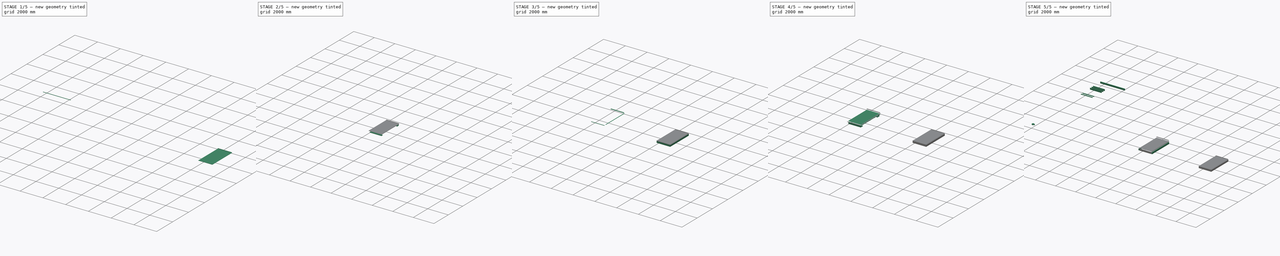
[diagram: build sequence overview — one tinted view per stage of 5, left to right]
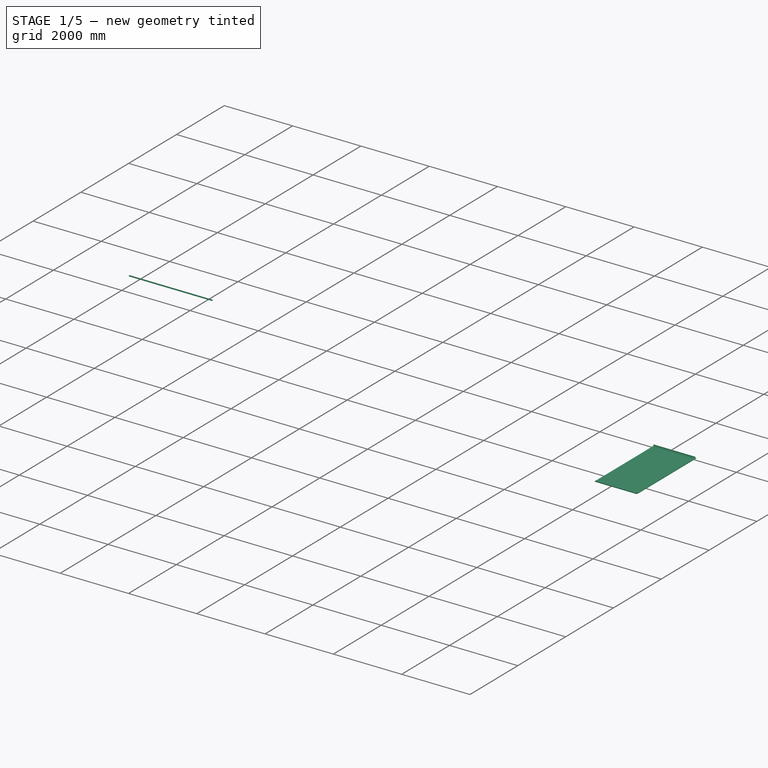
[diagram: stage 1 of 5 — iso view after this stage's code; geometry added in this stage tinted green]
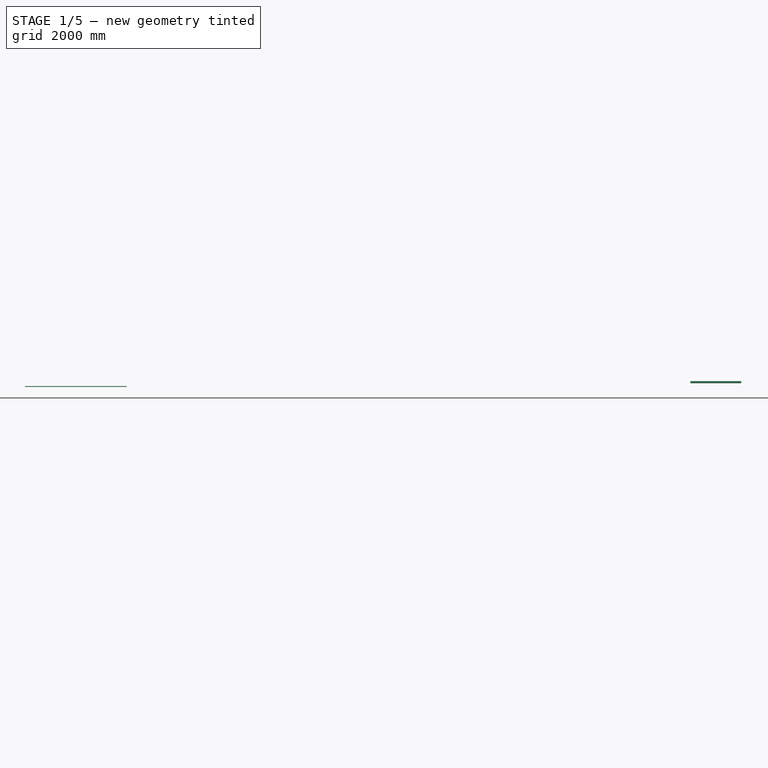
[diagram: stage 1 of 5 — front view after this stage's code; geometry added in this stage tinted green]
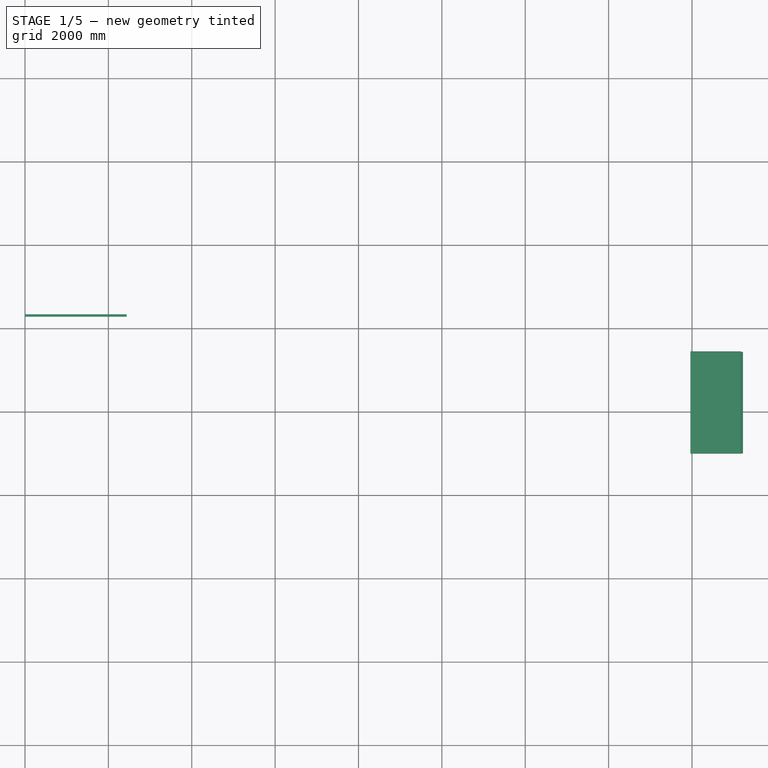
[diagram: stage 1 of 5 — top view after this stage's code; geometry added in this stage tinted green]
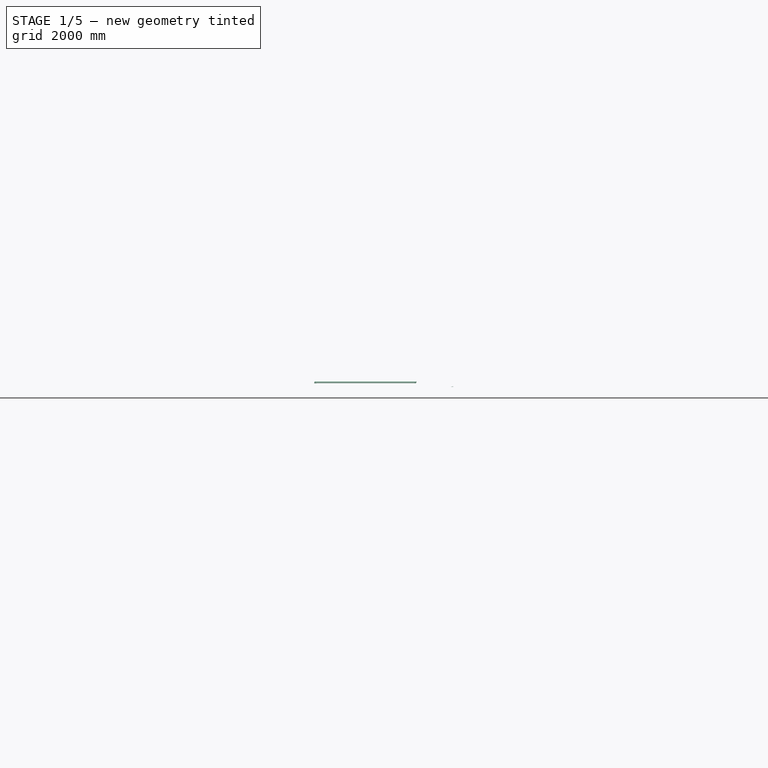
[diagram: stage 1 of 5 — right view after this stage's code; geometry added in this stage tinted green]
FCSTD DOCUMENT  (FreeCAD 0.16R5097 (Git))
Label: Wall panel
License: All rights reserved
LicenseURL: http://en.wikipedia.org/wiki/All_rights_reserved
objects: Part::Part2DObjectPython×55, Part::FeaturePython×53, Part::Feature×43, App::Annotation×22, App::DocumentObjectGroup×11, Sketcher::SketchObject×8, App::FeaturePython×8, App::MaterialObjectPython×3, Part::Revolution×3, Drawing::FeatureViewPython×2, App::DocumentObjectGroupPython×1, PartDesign::Pad×1, Part::Compound×1, Drawing::FeaturePage×1
note: 165 computed .brp shape members not serialized (recipe doc carries the construction recipe); baked Part::Feature solids carry a one-line shape summary decoded from their .brp

FEATURE [App::Annotation] Text002  label="Reinforcement lumbers description"
  LabelText = 2" x 2" x 3'-9" lumbers (3 pieces) for intermediary reinforcements
  Position = (34.31,-2300.23,0)
FEATURE [Part::Part2DObjectPython] Rectangle  # Draft 2D object (typed FeaturePython)
  ChamferSize = 0
  FilletRadius = 0
  Height = -11000
  Length = 6000
  MakeFace = false
  Placement = pos=(-541.625,624.587,0) rot=(0,0,1;0rad)
FEATURE [App::Annotation] Text003  label="Title"
  LabelText = Panel components
  Position = (-516.762,743.015,0)
FEATURE [Part::Part2DObjectPython] Rectangle001  # Draft 2D object (typed FeaturePython)
  ChamferSize = 0
  FilletRadius = 0
  Height = 1219.2
  Length = 2438.4
  MakeFace = true
  Placement = pos=(0,-5998.16,0) rot=(0,0,1;0rad)
FEATURE [App::MaterialObjectPython] Material001  label="Polycarbonate"  # material (typed FeaturePython)
  Material = Description=Double-walled polycarbonate; DiffuseColor=(0.3333333333333333, 0.6666666666666666, 1.0); Name=Polycarbonate
FEATURE [Part::FeaturePython] Panel  label="16'x3' Double-walled polycarbonate panel"  # WARN: FeaturePython — macro-defined, semantics opaque (R4)
  Base = -> Rectangle001
  BaseMaterial = -> Material001
  Length = 0
  MoveWithHost = false
  Placement = pos=(0,1021.59,0) rot=(0,0,1;0rad)
  Role = 0
  Sheets = 1
  Thickness = 11.1125
  Width = 0
FEATURE [App::Annotation] Text004  label="Polycarbonate panel description"
  LabelText = 8' x 4' x 7/16" double-walled polycarbonate panel
  Position = (26.08,-3587.07,0)
FEATURE [Sketcher::SketchObject] Sketch
  sketch-geometry (12):
    g0: LineSegment StartX=-29.6219 StartY=-7.52205 StartZ=0 EndX=30.1578 EndY=-7.52205 EndZ=0
    g1: LineSegment StartX=30.1578 StartY=-7.52205 StartZ=0 EndX=30.1578 EndY=-3.85919 EndZ=0
    g2: LineSegment StartX=30.1578 StartY=-3.85919 StartZ=0 EndX=7.1723 EndY=-3.85919 EndZ=0
    g3: LineSegment StartX=7.1723 StartY=-3.85919 StartZ=0 EndX=7.1723 EndY=11.1174 EndZ=0
    g4: LineSegment StartX=7.1723 StartY=11.1174 StartZ=0 EndX=3.50944 EndY=11.1174 EndZ=0
    g5: LineSegment StartX=3.50944 StartY=11.1174 StartZ=0 EndX=3.50944 EndY=-3.85919 EndZ=0
    g6: LineSegment StartX=3.50944 StartY=-3.85919 StartZ=0 EndX=-2.97357 EndY=-3.85919 EndZ=0
    g7: LineSegment StartX=-2.97357 StartY=-3.85919 StartZ=0 EndX=-2.97357 EndY=11.1174 EndZ=0
    g8: LineSegment StartX=-2.97357 StartY=11.1174 StartZ=0 EndX=-6.63643 EndY=11.1174 EndZ=0
    g9: LineSegment StartX=-6.63643 StartY=11.1174 StartZ=0 EndX=-6.63643 EndY=-3.85919 EndZ=0
    g10: LineSegment StartX=-6.63643 StartY=-3.85919 StartZ=0 EndX=-29.6219 EndY=-3.85919 EndZ=0
    g11: LineSegment StartX=-29.6219 StartY=-3.85919 StartZ=0 EndX=-29.6219 EndY=-7.52205 EndZ=0
  constraints (30):
    c: Horizontal(g0)
    c: Coincident(g0,g1)
    c: Coincident(g1,g2)
    c: Horizontal(g2)
    c: Coincident(g2,g3)
    c: Vertical(g3)
    c: Coincident(g3,g4)
    c: Coincident(g4,g5)
    c: Vertical(g5)
    c: Coincident(g5,g6)
    c: Coincident(g6,g7)
    c: Vertical(g7)
    c: Coincident(g7,g8)
    c: Horizontal(g8)
    c: Coincident(g8,g9)
    c: Vertical(g9)
    c: Coincident(g9,g10)
    c: Horizontal(g10)
    c: Coincident(g10,g11)
    c: Coincident(g11,g0)
    c: Horizontal(g6)
    c: Vertical(g1)
    c: Vertical(g11)
    c: Horizontal(g4)
    c: Equal(g10,g2)
    c: DistanceY(g9,g6) = 0
    c: DistanceY(g5,g2) = 0
    c: Equal(g8,g4)
    c: Equal(g11,g8)
    c: DistanceY(g7,g4) = 0
FEATURE [Sketcher::SketchObject] Sketch001
  Placement = pos=(0,7.97334,0) rot=(0,0,1;0rad)
  sketch-geometry (12):
    g0: LineSegment StartX=-30.0556 StartY=4.24198 StartZ=0 EndX=-19.2735 EndY=4.24198 EndZ=0
    g1: LineSegment StartX=-19.2735 StartY=4.24198 StartZ=0 EndX=-7.87271 EndY=17.9872 EndZ=0
    g2: LineSegment StartX=-7.87271 StartY=17.9872 StartZ=0 EndX=10.2206 EndY=17.9872 EndZ=0
    g3: LineSegment StartX=10.2206 StartY=17.9872 StartZ=0 EndX=18.9282 EndY=4.24198 EndZ=0
    g4: LineSegment StartX=18.9282 StartY=4.24198 StartZ=0 EndX=30.1723 EndY=4.24198 EndZ=0
    g5: LineSegment StartX=30.1723 StartY=4.24198 StartZ=0 EndX=30.1723 EndY=1.15852 EndZ=0
    g6: LineSegment StartX=30.1723 StartY=1.15852 StartZ=0 EndX=16.5802 EndY=1.15852 EndZ=0
    g7: LineSegment StartX=16.5802 StartY=1.15852 StartZ=0 EndX=8.0588 EndY=14.6097 EndZ=0
    g8: LineSegment StartX=8.0588 StartY=14.6097 StartZ=0 EndX=-6.67518 EndY=14.6097 EndZ=0
    g9: LineSegment StartX=-6.67518 StartY=14.6097 StartZ=0 EndX=-17.8321 EndY=1.15852 EndZ=0
    g10: LineSegment StartX=-17.8321 StartY=1.15852 StartZ=0 EndX=-30.0556 EndY=1.15852 EndZ=0
    g11: LineSegment StartX=-30.0556 StartY=1.15852 StartZ=0 EndX=-30.0556 EndY=4.24198 EndZ=0
  constraints (24):
    c: Horizontal(g0)
    c: Coincident(g0,g1)
    c: Coincident(g1,g2)
    c: Horizontal(g2)
    c: Coincident(g2,g3)
    c: Coincident(g3,g4)
    c: Horizontal(g4)
    c: Coincident(g4,g5)
    c: Coincident(g5,g6)
    c: Horizontal(g6)
    c: Coincident(g6,g7)
    c: Coincident(g7,g8)
    c: Horizontal(g8)
    c: Coincident(g8,g9)
    c: Coincident(g9,g10)
    c: Horizontal(g10)
    c: Coincident(g10,g11)
    c: Coincident(g11,g0)
    c: Vertical(g11)
    c: Vertical(g5)
    c: DistanceY(g9,g6) = 0
    c: Equal(g11,g5)
    c: Parallel(g1,g9)
    c: Parallel(g7,g3)
FEATURE [App::MaterialObjectPython] Material002  label="Aluminium"  # material (typed FeaturePython)
  Material = DiffuseColor=(0.5019607843137255, 0.5019607843137255, 0.5019607843137255); Name=Aluminium
FEATURE [App::DocumentObjectGroupPython] MaterialContainer  label="Materials"  # scripted group (container) (typed FeaturePython)
  Group = -> [Material,Material001,Material002]
FEATURE [Part::FeaturePython] Structure013  label="Side aluminium profile (bottom)"  # WARN: FeaturePython — macro-defined, semantics opaque (R4)
  Base = -> Sketch
  BaseMaterial = -> Material002
  Height = 2438.4
  Length = 0
  MoveWithHost = false
  Normal = (0,0,0)
  Placement = pos=(2438.4,-5687.63,0) rot=(0.57735,-0.57735,-0.57735;2.0944rad)
  Role = 0
  Width = 200
FEATURE [Part::FeaturePython] Structure014  label="Side aluminium profile (top)"  # WARN: FeaturePython — macro-defined, semantics opaque (R4)
  Base = -> Sketch001
  BaseMaterial = -> Material002
  Height = 2438.4
  Length = 0
  MoveWithHost = false
  Normal = (0,0,0)
  Placement = pos=(2438.4,-5928.68,0) rot=(0.57735,-0.57735,-0.57735;2.0944rad)
  Role = 0
  Width = 200
FEATURE [App::Annotation] Text005  label="Lateral profiles description"
  LabelText = 8' bottom and top lateral aluminium profiles
  Position = (0.0824738,-5512.03,0)
FEATURE [Sketcher::SketchObject] Sketch002
  sketch-geometry (8):
    g0: LineSegment StartX=-9.22629 StartY=-20.5369 StartZ=0 EndX=-58.2003 EndY=-20.5369 EndZ=0
    g1: LineSegment StartX=-58.2003 StartY=-20.5369 StartZ=0 EndX=-58.2003 EndY=2.21798 EndZ=0
    g2: LineSegment StartX=-58.2003 StartY=2.21798 StartZ=0 EndX=-24.5008 EndY=2.21798 EndZ=0
    g3: LineSegment StartX=-24.5008 StartY=2.21798 StartZ=0 EndX=-24.5008 EndY=-2.23089 EndZ=0
    g4: LineSegment StartX=-24.5008 StartY=-2.23089 StartZ=0 EndX=-53.6316 EndY=-2.23089 EndZ=0
    g5: LineSegment StartX=-53.6316 StartY=-2.23089 StartZ=0 EndX=-53.6316 EndY=-16.0881 EndZ=0
    g6: LineSegment StartX=-53.6316 StartY=-16.0881 StartZ=0 EndX=-9.22629 EndY=-16.0881 EndZ=0
    g7: LineSegment StartX=-9.22629 StartY=-16.0881 StartZ=0 EndX=-9.22629 EndY=-20.5369 EndZ=0
  constraints (17):
    c: Horizontal(g0)
    c: Coincident(g0,g1)
    c: Vertical(g1)
    c: Coincident(g1,g2)
    c: Horizontal(g2)
    c: Coincident(g2,g3)
    c: Coincident(g3,g4)
    c: Horizontal(g4)
    c: Coincident(g4,g5)
    c: Vertical(g5)
    c: Coincident(g5,g6)
    c: Horizontal(g6)
    c: Coincident(g6,g7)
    c: Coincident(g7,g0)
    c: Vertical(g7)
    c: Vertical(g3)
    c: Equal(g3,g7)
FEATURE [Sketcher::SketchObject] Sketch003
  sketch-geometry (6):
    g0: LineSegment StartX=-37.7563 StartY=-3.79057 StartZ=0 EndX=-37.7563 EndY=-40.4496 EndZ=0
    g1: LineSegment StartX=-37.7563 StartY=-40.4496 StartZ=0 EndX=5.56354 EndY=-48.279 EndZ=0
    g2: LineSegment StartX=5.56354 StartY=-48.279 StartZ=0 EndX=6.29032 EndY=-44.2577 EndZ=0
    g3: LineSegment StartX=6.29032 StartY=-44.2577 StartZ=0 EndX=-33.6699 EndY=-37.0355 EndZ=0
    g4: LineSegment StartX=-33.6699 StartY=-37.0355 StartZ=0 EndX=-33.6699 EndY=-3.79057 EndZ=0
    g5: LineSegment StartX=-33.6699 StartY=-3.79057 StartZ=0 EndX=-37.7563 EndY=-3.79057 EndZ=0
  constraints (12):
    c: Vertical(g0)
    c: Coincident(g0,g1)
    c: Coincident(g1,g2)
    c: Coincident(g2,g3)
    c: Coincident(g3,g4)
    c: Vertical(g4)
    c: Coincident(g4,g5)
    c: Coincident(g5,g0)
    c: Horizontal(g5)
    c: Angle(g2,g1) = 1.5708
    c: Equal(g5,g2)
    c: Parallel(g3,g1)
FEATURE [Part::FeaturePython] Structure015  label="Bottom aluminium profile"  # WARN: FeaturePython — macro-defined, semantics opaque (R4)
  Base = -> Sketch002
  BaseMaterial = -> Material002
  Height = 1219.2
  Length = 0
  MoveWithHost = false
  Normal = (0,0,0)
  Placement = pos=(0,-6701.95,0) rot=(0.57735,0.57735,0.57735;2.0944rad)
  Role = 0
  Width = 200
FEATURE [Part::FeaturePython] Structure016  label="Flashing profile"  # WARN: FeaturePython — macro-defined, semantics opaque (R4)
  Base = -> Sketch003
  BaseMaterial = -> Material002
  Height = 1219.2
  Length = 0
  MoveWithHost = false
  Normal = (0,0,0)
  Placement = pos=(0,-6914.23,19.816) rot=(0.57735,0.57735,0.57735;2.0944rad)
  Role = 0
  Width = 200
FEATURE [Part::FeaturePython] Structure048  label="Clone of Side aluminium profile (top)001"  # WARN: FeaturePython — macro-defined, semantics opaque (R4)
  BaseMaterial = -> Material002
  CloneOf = -> Structure014
  Height = 2000
  Length = 200
  MoveWithHost = false
  Nodes = (2) [(0,0,0),(0,0,2000)]
  Normal = (0,0,0)
  Placement = pos=(17193.5,-6561.6,93.4282) rot=(1,0,0;1.5708rad)
  Role = 0
  Width = 200
FEATURE [Part::FeaturePython] Panel002  label="Clone of 16'x3' Double-walled polycarbonate panel001"  # WARN: FeaturePython — macro-defined, semantics opaque (R4)
  BaseMaterial = -> Material001
  CloneOf = -> Panel
  Length = 0
  MoveWithHost = false
  Placement = pos=(11181.6,-9000,83.4135) rot=(0,0,1;1.5708rad)
  Role = 0
  Sheets = 1
  Thickness = 0
  Width = 0
FEATURE [Part::FeaturePython] Structure049  label="Clone of Bottom aluminium profile001"  # WARN: FeaturePython — macro-defined, semantics opaque (R4)
  BaseMaterial = -> Material002
  CloneOf = -> Structure015
  Height = 2000
  Length = 200
  MoveWithHost = false
  Nodes = (2) [(0,0,0),(0,0,2000)]
  Normal = (0,0,0)
  Placement = pos=(15960.5,-8946.37,99.5016) rot=(0.57735,0.57735,0.57735;2.0944rad)
  Role = 0
  Width = 200
FEATURE [Part::FeaturePython] Structure050  label="Clone of Flashing profile001"  # WARN: FeaturePython — macro-defined, semantics opaque (R4)
  BaseMaterial = -> Material002
  CloneOf = -> Structure016
  Height = 2000
  Length = 200
  MoveWithHost = false
  Nodes = (2) [(0,0,0),(0,0,2000)]
  Normal = (0,0,0)
  Placement = pos=(17179.7,-6586.51,141.274) rot=(0.537978,-0.648969,-0.537978;1.99029rad)
  Role = 0
  Width = 200
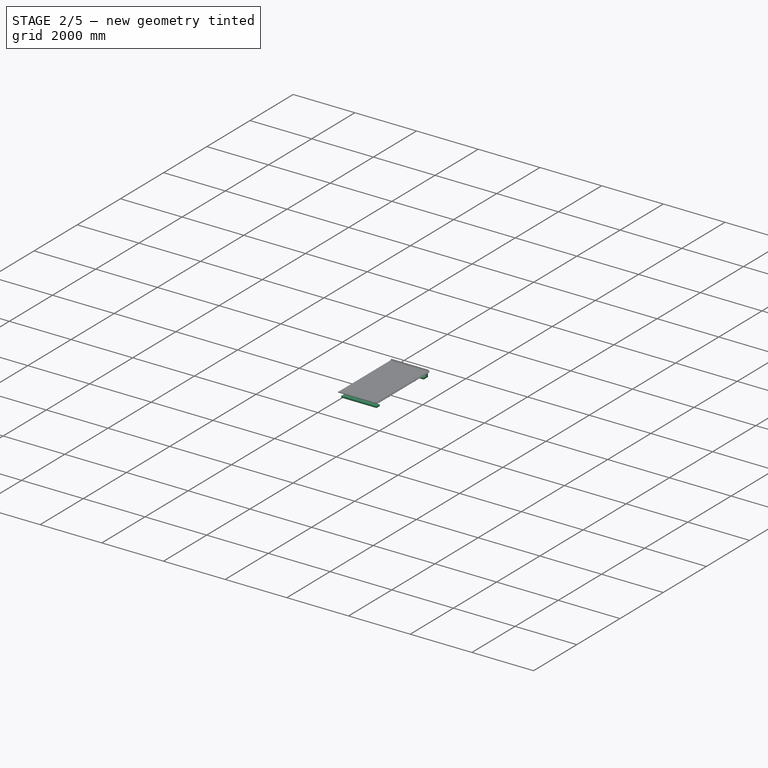
[diagram: stage 2 of 5 — iso view after this stage's code; geometry added in this stage tinted green]
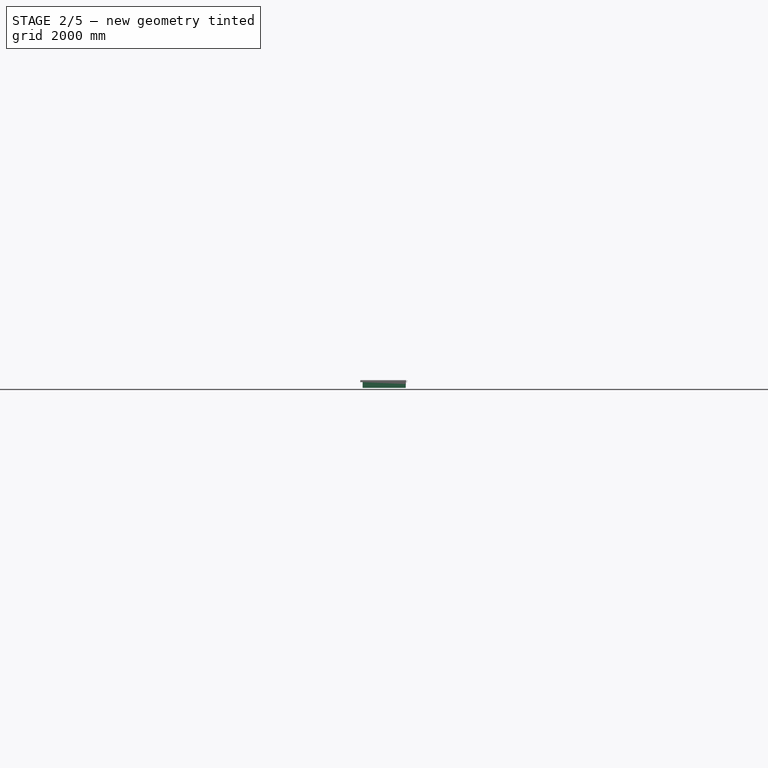
[diagram: stage 2 of 5 — front view after this stage's code; geometry added in this stage tinted green]
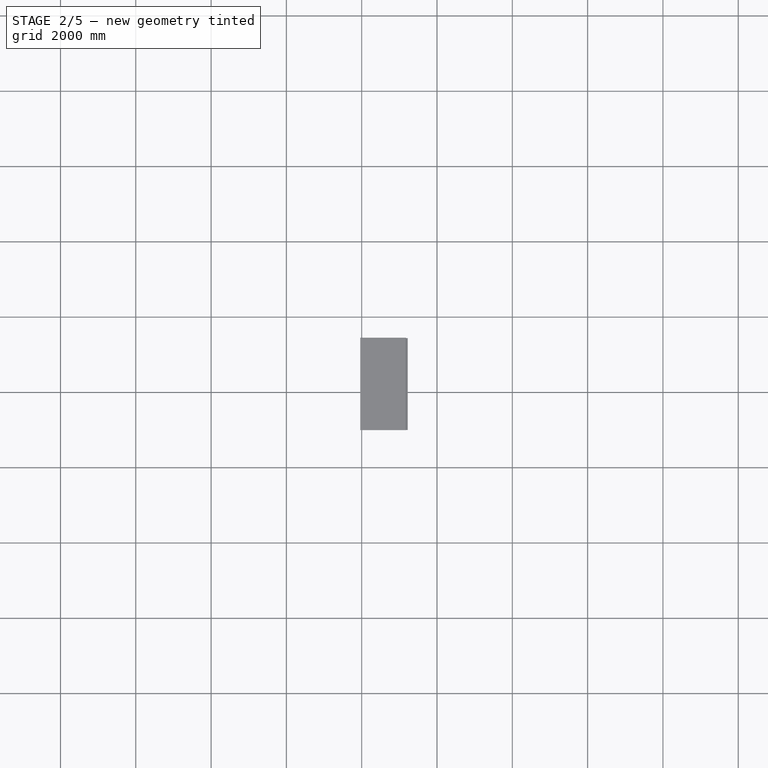
[diagram: stage 2 of 5 — top view after this stage's code; geometry added in this stage tinted green]
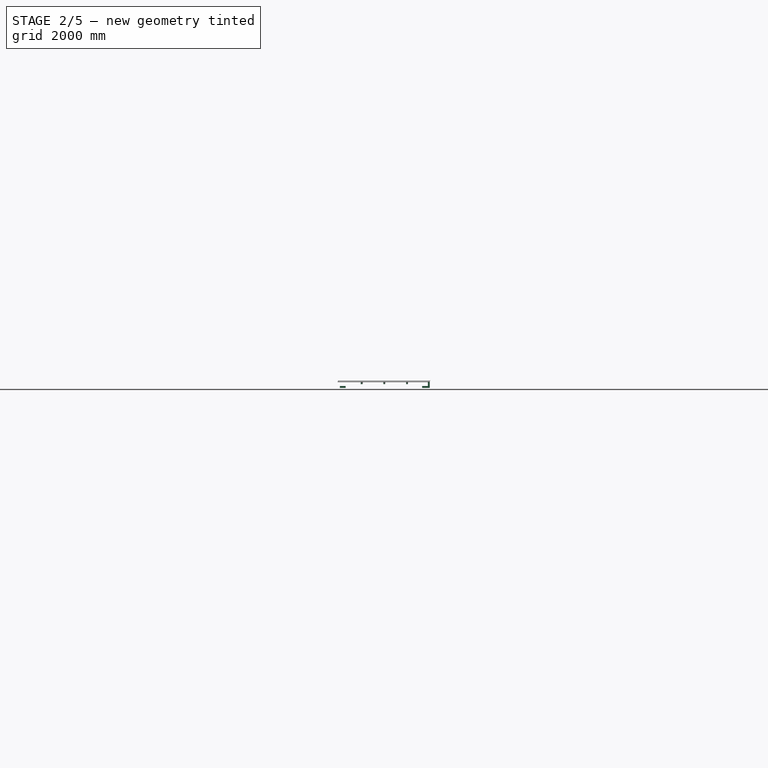
[diagram: stage 2 of 5 — right view after this stage's code; geometry added in this stage tinted green]
FEATURE [Part::FeaturePython] Structure002  label="2'9" End lumber 01"  # WARN: FeaturePython — macro-defined, semantics opaque (R4)
  BaseMaterial = -> Material
  Height = 152.4
  Length = 1143
  MoveWithHost = false
  Nodes = (2) [(0,0,0),(1143,0,0)]
  Normal = (0,0,0)
  Placement = pos=(0,-1000,0) rot=(0,0,1;0rad)
  Role = 0
  Width = 50.8
FEATURE [App::Annotation] Text  label="Side lumbers description"
  LabelText = 2" x 6" x 8' lumbers (2 pieces) for the sides of the panel
  Position = (3.50563,150.932,0)
FEATURE [App::Annotation] Text001  label="End lumbers description"
  LabelText = 2" x 6" x 3'-9" lumbers (4 pieces) for the ends of the panel
  Position = (12.2787,-832.656,0)
FEATURE [Part::FeaturePython] Structure006  label="2'9" Reinforcement 01"  # WARN: FeaturePython — macro-defined, semantics opaque (R4)
  BaseMaterial = -> Material
  Height = 50.8
  Length = 1143
  MoveWithHost = false
  Nodes = (2) [(0,0,0),(1143,0,0)]
  Normal = (0,0,0)
  Placement = pos=(0,-2496.34,0) rot=(0,0,1;0rad)
  Role = 0
  Width = 50.8
FEATURE [Part::FeaturePython] Structure037  label="Clone of 2'9" End lumber 006"  # WARN: FeaturePython — macro-defined, semantics opaque (R4)
  BaseMaterial = -> Material
  CloneOf = -> Structure002
  Height = 2000
  Length = 200
  MoveWithHost = false
  Nodes = (2) [(0,0,0),(0,0,2000)]
  Normal = (0,0,0)
  Placement = pos=(16025.4,-8873,-50.8) rot=(1,0,0;1.5708rad)
  Role = 0
  Width = 200
FEATURE [Part::FeaturePython] Structure038  label="Clone of 2'9" Reinforcement 008"  # WARN: FeaturePython — macro-defined, semantics opaque (R4)
  BaseMaterial = -> Material
  CloneOf = -> Structure006
  Height = 2000
  Length = 200
  MoveWithHost = false
  Nodes = (2) [(0,0,0),(0,0,2000)]
  Normal = (0,0,0)
  Placement = pos=(16029.1,-8368.12,50.8) rot=(0,0,1;0rad)
  Role = 0
  Width = 200
FEATURE [Part::FeaturePython] Structure039  label="Clone of 2'9" Reinforcement 009"  # WARN: FeaturePython — macro-defined, semantics opaque (R4)
  BaseMaterial = -> Material
  CloneOf = -> Structure006
  Height = 2000
  Length = 200
  MoveWithHost = false
  Nodes = (2) [(0,0,0),(0,0,2000)]
  Normal = (0,0,0)
  Placement = pos=(16025.4,-7768.1,50.8) rot=(0,0,1;0rad)
  Role = 0
  Width = 200
FEATURE [Part::FeaturePython] Structure040  label="Clone of 2'9" Reinforcement 010"  # WARN: FeaturePython — macro-defined, semantics opaque (R4)
  BaseMaterial = -> Material
  CloneOf = -> Structure006
  Height = 2000
  Length = 200
  MoveWithHost = false
  Nodes = (2) [(0,0,0),(0,0,2000)]
  Normal = (0,0,0)
  Placement = pos=(16025.4,-7164.85,50.8) rot=(0,0,1;0rad)
  Role = 0
  Width = 200
FEATURE [Part::FeaturePython] Structure045  label="Clone of 2'9" End lumber 007"  # WARN: FeaturePython — macro-defined, semantics opaque (R4)
  BaseMaterial = -> Material
  CloneOf = -> Structure002
  Height = 2000
  Length = 200
  MoveWithHost = false
  Nodes = (2) [(0,0,0),(0,0,2000)]
  Normal = (0,0,0)
  Placement = pos=(16025.4,-6688.6,-50.8) rot=(1,0,0;1.5708rad)
  Role = 0
  Width = 200
FEATURE [Part::FeaturePython] Structure046  label="Clone of 2'9" End lumber 008"  # WARN: FeaturePython — macro-defined, semantics opaque (R4)
  BaseMaterial = -> Material
  CloneOf = -> Structure002
  Height = 2000
  Length = 200
  MoveWithHost = false
  Nodes = (2) [(0,0,0),(0,0,2000)]
  Normal = (0,0,0)
  Placement = pos=(16025.4,-6587,0) rot=(0,0,1;0rad)
  Role = 0
  Width = 200
FEATURE [Part::FeaturePython] Structure047  label="Clone of Side aluminium profile (bottom)001"  # WARN: FeaturePython — macro-defined, semantics opaque (R4)
  BaseMaterial = -> Material002
  CloneOf = -> Structure013
  Height = 2000
  Length = 200
  MoveWithHost = false
  Nodes = (2) [(0,0,0),(0,0,2000)]
  Normal = (0,0,0)
  Placement = pos=(17193.5,-6561.6,83.7221) rot=(1,0,0;1.5708rad)
  Role = 0
  Width = 200
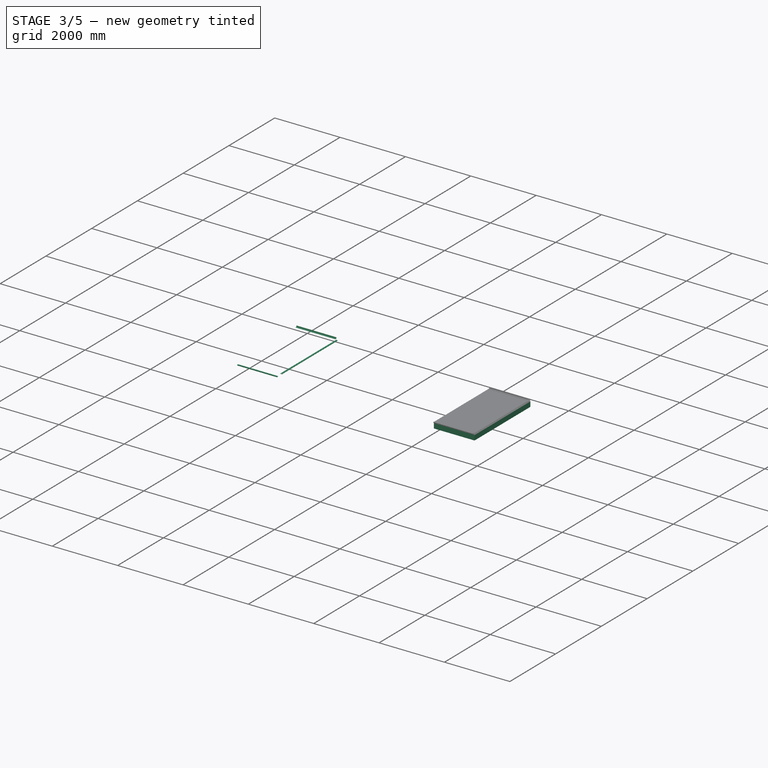
[diagram: stage 3 of 5 — iso view after this stage's code; geometry added in this stage tinted green]
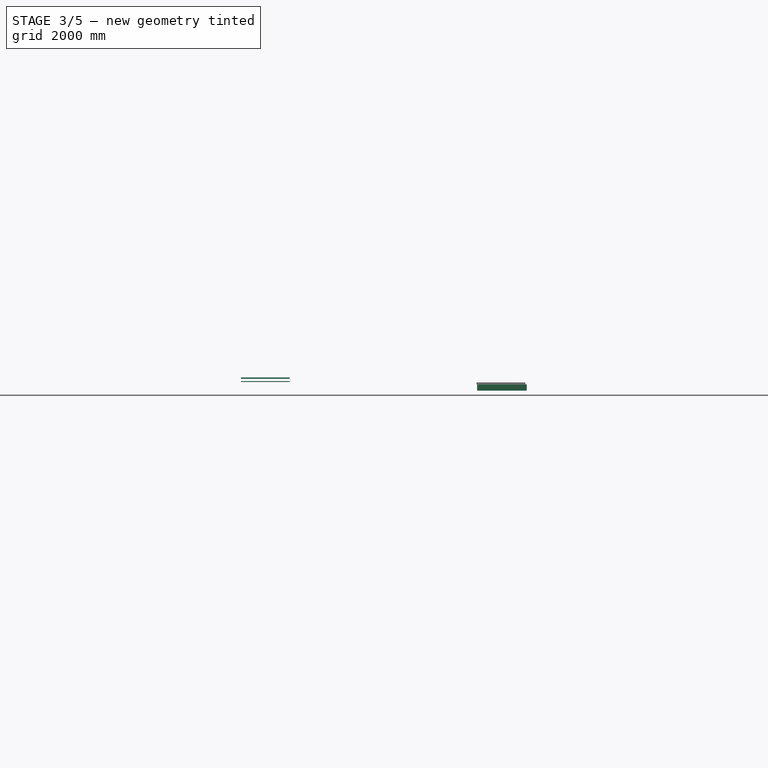
[diagram: stage 3 of 5 — front view after this stage's code; geometry added in this stage tinted green]
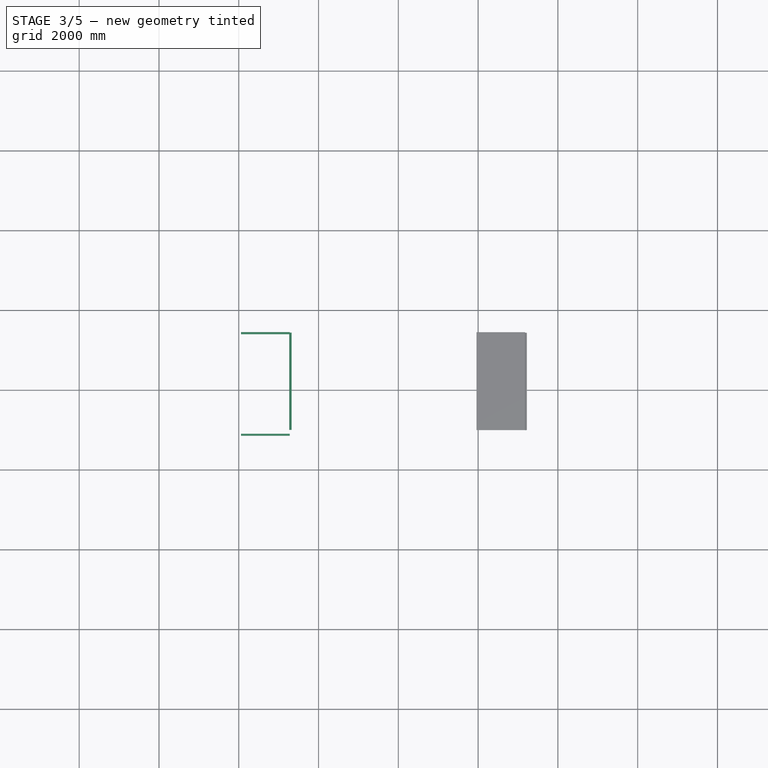
[diagram: stage 3 of 5 — top view after this stage's code; geometry added in this stage tinted green]
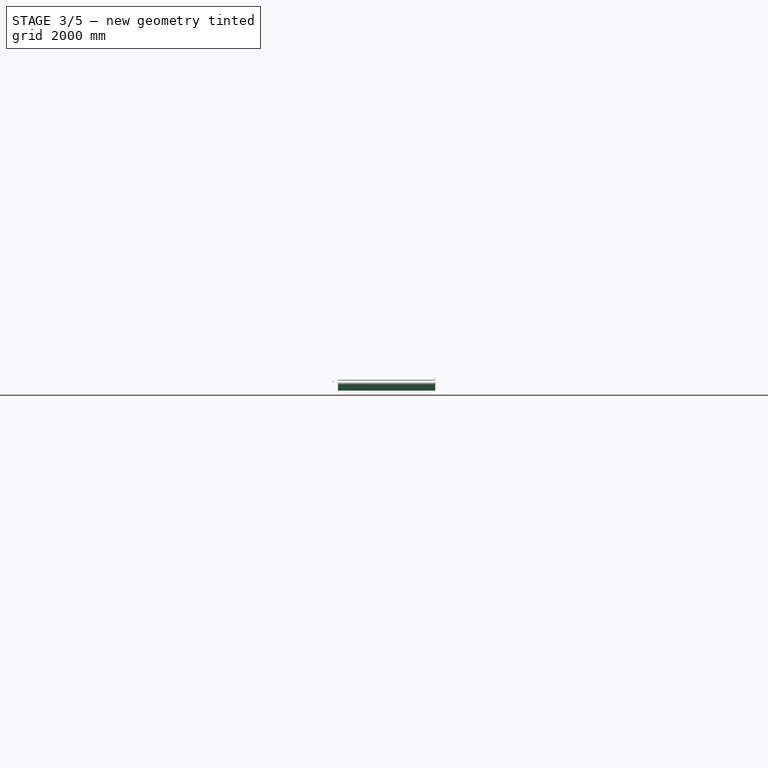
[diagram: stage 3 of 5 — right view after this stage's code; geometry added in this stage tinted green]
FEATURE [App::MaterialObjectPython] Material  label="Wood"  # material (typed FeaturePython)
  Material = AuthorAndLicense=(c) 2015 Bernd Hahnebach (CC-BY 3.0); CardName=Standard Wood Material; Description=A standard construction wood; DiffuseColor=(0.8705882352941177, 0.6, 0.4196078431372549); Father=Aggregate; Name=Wood; PoissonRatio=0.05; ProductURL=http://en.wikipedia.org/wiki/Wood; SpecificWeight=500; YoungsModulus=12000 MPa
FEATURE [Part::FeaturePython] Structure  label="16' Side lumber 01"  # WARN: FeaturePython — macro-defined, semantics opaque (R4)
  BaseMaterial = -> Material
  Height = 152.4
  Length = 2438.4
  MoveWithHost = false
  Nodes = (2) [(0,0,0),(2438.4,0,0)]
  Normal = (0,0,0)
  Role = 0
  Width = 50.8
FEATURE [Part::FeaturePython] Structure031  label="Clone of Side aluminium profile (top)"  # WARN: FeaturePython — macro-defined, semantics opaque (R4)
  BaseMaterial = -> Material002
  CloneOf = -> Structure014
  Height = 2000
  Length = 200
  MoveWithHost = false
  Nodes = (2) [(0,0,0),(0,0,2000)]
  Normal = (0,0,0)
  Placement = pos=(11295.1,-6561.6,167.778) rot=(1,0,0;1.5708rad)
  Role = 0
  Width = 200
FEATURE [App::DocumentObjectGroup] Group008  label="Structure"
  Group = -> [Structure021,Structure022,Structure027,Structure028,Structure029,Structure020,Structure019,Structure018,Structure017]
FEATURE [Part::FeaturePython] Structure032  label="Clone of Bottom aluminium profile"  # WARN: FeaturePython — macro-defined, semantics opaque (R4)
  BaseMaterial = -> Material002
  CloneOf = -> Structure015
  Height = 2000
  Length = 200
  MoveWithHost = false
  Nodes = (2) [(0,0,0),(0,0,2000)]
  Normal = (0,0,0)
  Placement = pos=(10057.8,-9085.6,158.983) rot=(0.57735,0.57735,0.57735;2.0944rad)
  Role = 0
  Width = 200
FEATURE [Part::FeaturePython] Structure033  label="Clone of Flashing profile"  # WARN: FeaturePython — macro-defined, semantics opaque (R4)
  BaseMaterial = -> Material002
  CloneOf = -> Structure016
  Height = 2000
  Length = 200
  MoveWithHost = false
  Nodes = (2) [(0,0,0),(0,0,2000)]
  Normal = (0,0,0)
  Placement = pos=(11277,-6586.71,264.761) rot=(0.537978,-0.648969,-0.537978;1.99029rad)
  Role = 0
  Width = 200
FEATURE [App::DocumentObjectGroup] Group009  label="Panel"
  Group = -> [Panel001,Structure030,Structure031,Structure033,Structure032]
FEATURE [Part::Part2DObjectPython] Line025  # Draft 2D object (typed FeaturePython)
  ChamferSize = 0
  Closed = false
  End = (10057.8,-9139.23,156.752)
  FilletRadius = 0
  Length = 139.234
  MakeFace = true
  Points = (2) [(10057.8,-9000,156.752),(10057.8,-9139.23,156.752)]
  Start = (10057.8,-9000,156.752)
FEATURE [Part::Part2DObjectPython] Line026  # Draft 2D object (typed FeaturePython)
  ChamferSize = 0
  Closed = false
  End = (10057.8,-9139.23,145.639)
  FilletRadius = 0
  Length = 139.234
  MakeFace = true
  Placement = pos=(1.0101e-08,-2e-12,-11.1125) rot=(0,0,1;0rad)
  Points = (2) [(10057.8,-9000,156.752),(10057.8,-9139.23,156.752)]
  Start = (10057.8,-9000,145.639)
FEATURE [Part::Part2DObjectPython] Line027  # Draft 2D object (typed FeaturePython)
  ChamferSize = 0
  Closed = false
  End = (10972.2,-9139.23,156.752)
  FilletRadius = 0
  Length = 139.234
  MakeFace = true
  Placement = pos=(914.4,0,0) rot=(0,0,1;0rad)
  Points = (2) [(10057.8,-9000,156.752),(10057.8,-9139.23,156.752)]
  Start = (10972.2,-9000,156.752)
FEATURE [Part::Part2DObjectPython] Line028  # Draft 2D object (typed FeaturePython)
  ChamferSize = 0
  Closed = false
  End = (10972.2,-9139.23,145.639)
  FilletRadius = 0
  Length = 139.234
  MakeFace = true
  Placement = pos=(914.4,-2e-12,-11.1125) rot=(0,0,1;0rad)
  Points = (2) [(10057.8,-9000,156.752),(10057.8,-9139.23,156.752)]
  Start = (10972.2,-9000,145.639)
FEATURE [Part::Part2DObjectPython] Line029  # Draft 2D object (typed FeaturePython)
  ChamferSize = 0
  Closed = false
  End = (10362.6,-8985.41,327.505)
  FilletRadius = 0
  Length = 671.05
  MakeFace = true
  Placement = pos=(925.605,-8960.01,-8500.68) rot=(-1,0,0;1.5708rad)
  Points = (2) [(9437,-8157.13,-25.4),(9437,-8828.18,-25.4)]
  Start = (10362.6,-8985.41,-343.545)
FEATURE [Part::Part2DObjectPython] Line030  # Draft 2D object (typed FeaturePython)
  ChamferSize = 0
  Closed = false
  End = (10667.4,-8985.41,327.505)
  FilletRadius = 0
  Length = 671.05
  MakeFace = true
  Placement = pos=(1230.41,-8960.01,-8500.68) rot=(-1,0,0;1.5708rad)
  Points = (2) [(9437,-8157.13,-25.4),(9437,-8828.18,-25.4)]
  Start = (10667.4,-8985.41,-343.545)
FEATURE [Part::Part2DObjectPython] Line031  # Draft 2D object (typed FeaturePython)
  ChamferSize = 0
  Closed = false
  End = (10972.2,-8985.41,327.505)
  FilletRadius = 0
  Length = 671.05
  MakeFace = true
  Placement = pos=(1535.21,-8960.01,-8500.68) rot=(-1,0,0;1.5708rad)
  Points = (2) [(9437,-8157.13,-25.4),(9437,-8828.18,-25.4)]
  Start = (10972.2,-8985.41,-343.545)
FEATURE [Part::Feature] Revolve003  label="1" screw001"
  Placement = pos=(10362.6,-8985.41,367.405) rot=(0,0.707107,0.707107;3.14159rad)
  shape: bbox 21.74 x 21.74 x 31.96 mm, 8 faces, 0 solids (baked)
FEATURE [Part::Feature] Revolve004  label="1" screw002"
  Placement = pos=(10667.4,-8985.41,367.405) rot=(0,0.707107,0.707107;3.14159rad)
  shape: bbox 21.74 x 21.74 x 31.96 mm, 8 faces, 0 solids (baked)
FEATURE [Part::Feature] Revolve005  label="1" screw003"
  Placement = pos=(10972.2,-8985.41,367.405) rot=(0,0.707107,0.707107;3.14159rad)
  shape: bbox 21.74 x 21.74 x 31.96 mm, 8 faces, 0 solids (baked)
FEATURE [Part::Part2DObjectPython] Line032  # Draft 2D object (typed FeaturePython)
  ChamferSize = 0
  Closed = false
  End = (10362.6,-6579.08,327.505)
  FilletRadius = 0
  Length = 671.05
  MakeFace = true
  Placement = pos=(925.605,-6553.68,-8500.68) rot=(-1,0,0;1.5708rad)
  Points = (2) [(9437,-8157.13,-25.4),(9437,-8828.18,-25.4)]
  Start = (10362.6,-6579.08,-343.545)
FEATURE [Part::Feature] Revolve006  label="1" screw004"
  Placement = pos=(10972.2,-6579.08,367.405) rot=(0,0.707107,0.707107;3.14159rad)
  shape: bbox 21.74 x 21.74 x 31.96 mm, 8 faces, 0 solids (baked)
FEATURE [Part::Feature] Revolve007  label="1" screw005"
  Placement = pos=(10362.6,-6579.08,367.405) rot=(0,0.707107,0.707107;3.14159rad)
  shape: bbox 21.74 x 21.74 x 31.96 mm, 8 faces, 0 solids (baked)
FEATURE [Part::Part2DObjectPython] Line033  # Draft 2D object (typed FeaturePython)
  ChamferSize = 0
  Closed = false
  End = (10667.4,-6579.08,327.505)
  FilletRadius = 0
  Length = 671.05
  MakeFace = true
  Placement = pos=(1230.41,-6553.68,-8500.68) rot=(-1,0,0;1.5708rad)
  Points = (2) [(9437,-8157.13,-25.4),(9437,-8828.18,-25.4)]
  Start = (10667.4,-6579.08,-343.545)
FEATURE [Part::Part2DObjectPython] Line034  # Draft 2D object (typed FeaturePython)
  ChamferSize = 0
  Closed = false
  End = (10972.2,-6579.08,327.505)
  FilletRadius = 0
  Length = 671.05
  MakeFace = true
  Placement = pos=(1535.21,-6553.68,-8500.68) rot=(-1,0,0;1.5708rad)
  Points = (2) [(9437,-8157.13,-25.4),(9437,-8828.18,-25.4)]
  Start = (10972.2,-6579.08,-343.545)
FEATURE [Part::Feature] Revolve008  label="1" screw006"
  Placement = pos=(10667.4,-6579.08,367.405) rot=(0,0.707107,0.707107;3.14159rad)
  shape: bbox 21.74 x 21.74 x 31.96 mm, 8 faces, 0 solids (baked)
FEATURE [Part::Feature] Revolve009  label="1" screw007"
  Placement = pos=(11295.1,-8985.41,367.405) rot=(0,0.707107,0.707107;3.14159rad)
  shape: bbox 21.74 x 21.74 x 31.96 mm, 8 faces, 0 solids (baked)
FEATURE [Part::Feature] Revolve010  label="1" screw008"
  Placement = pos=(11295.1,-8680.61,367.405) rot=(0,0.707107,0.707107;3.14159rad)
  shape: bbox 21.74 x 21.74 x 31.96 mm, 8 faces, 0 solids (baked)
FEATURE [Part::Part2DObjectPython] Line037  # Draft 2D object (typed FeaturePython)
  ChamferSize = 0
  Closed = false
  End = (11295.1,-8375.81,327.505)
  FilletRadius = 0
  Length = 671.05
  MakeFace = true
  Placement = pos=(1858.12,-8350.41,-8500.68) rot=(-1,0,0;1.5708rad)
  Points = (2) [(9437,-8157.13,-25.4),(9437,-8828.18,-25.4)]
  Start = (11295.1,-8375.81,-343.545)
FEATURE [Part::Feature] Revolve011  label="1" screw009"
  Placement = pos=(11295.1,-8375.81,367.405) rot=(0,0.707107,0.707107;3.14159rad)
  shape: bbox 21.74 x 21.74 x 31.96 mm, 8 faces, 0 solids (baked)
FEATURE [Part::Part2DObjectPython] Line038  # Draft 2D object (typed FeaturePython)
  ChamferSize = 0
  Closed = false
  End = (11295.1,-8071.01,327.505)
  FilletRadius = 0
  Length = 671.05
  MakeFace = true
  Placement = pos=(1858.12,-8045.61,-8500.68) rot=(-1,0,0;1.5708rad)
  Points = (2) [(9437,-8157.13,-25.4),(9437,-8828.18,-25.4)]
  Start = (11295.1,-8071.01,-343.545)
FEATURE [Part::Feature] Revolve012  label="1" screw010"
  Placement = pos=(11295.1,-8071.01,367.405) rot=(0,0.707107,0.707107;3.14159rad)
  shape: bbox 21.74 x 21.74 x 31.96 mm, 8 faces, 0 solids (baked)
FEATURE [Part::Feature] Revolve013  label="1" screw011"
  Placement = pos=(11295.1,-7766.21,367.405) rot=(0,0.707107,0.707107;3.14159rad)
  shape: bbox 21.74 x 21.74 x 31.96 mm, 8 faces, 0 solids (baked)
FEATURE [Part::Feature] Revolve014  label="1" screw012"
  Placement = pos=(11295.1,-7461.41,367.405) rot=(0,0.707107,0.707107;3.14159rad)
  shape: bbox 21.74 x 21.74 x 31.96 mm, 8 faces, 0 solids (baked)
FEATURE [Part::Part2DObjectPython] Line041  # Draft 2D object (typed FeaturePython)
  ChamferSize = 0
  Closed = false
  End = (11295.1,-7156.61,327.505)
  FilletRadius = 0
  Length = 671.05
  MakeFace = true
  Placement = pos=(1858.12,-7131.21,-8500.68) rot=(-1,0,0;1.5708rad)
  Points = (2) [(9437,-8157.13,-25.4),(9437,-8828.18,-25.4)]
  Start = (11295.1,-7156.61,-343.545)
FEATURE [Part::Feature] Revolve015  label="1" screw013"
  Placement = pos=(11295.1,-7156.61,367.405) rot=(0,0.707107,0.707107;3.14159rad)
  shape: bbox 21.74 x 21.74 x 31.96 mm, 8 faces, 0 solids (baked)
FEATURE [Part::Part2DObjectPython] Line042  # Draft 2D object (typed FeaturePython)
  ChamferSize = 0
  Closed = false
  End = (11295.1,-6851.81,327.505)
  FilletRadius = 0
  Length = 671.05
  MakeFace = true
  Placement = pos=(1858.12,-6826.41,-8500.68) rot=(-1,0,0;1.5708rad)
  Points = (2) [(9437,-8157.13,-25.4),(9437,-8828.18,-25.4)]
  Start = (11295.1,-6851.81,-343.545)
FEATURE [Part::Feature] Revolve016  label="1" screw014"
  Placement = pos=(11295.1,-6851.81,367.405) rot=(0,0.707107,0.707107;3.14159rad)
  shape: bbox 21.74 x 21.74 x 31.96 mm, 8 faces, 0 solids (baked)
FEATURE [Part::Feature] Revolve017  label="1" screw015"
  Placement = pos=(11295.1,-6547.01,367.405) rot=(0,0.707107,0.707107;3.14159rad)
  shape: bbox 21.74 x 21.74 x 31.96 mm, 8 faces, 0 solids (baked)
FEATURE [Part::Part2DObjectPython] Rectangle002  # Draft 2D object (typed FeaturePython)
  ChamferSize = 0
  FilletRadius = 0
  Height = 3500
  Length = 2800
  MakeFace = false
  Placement = pos=(9230.01,-9609.97,0) rot=(0,0,1;0rad)
FEATURE [App::Annotation] Text009  label="Title001"
  LabelText = Assembly
  Position = (9253.79,-5857.22,0)
FEATURE [App::Annotation] Text010
  LabelText = 3 x 3" screws
  Position = (7681.09,-7148.21,0)
FEATURE [App::Annotation] Text011
  LabelText = 3 x 3" screws
  Position = (7687.07,-6366.15,0)
FEATURE [Part::Part2DObjectPython] DWire  # Draft 2D object (typed FeaturePython)
  ChamferSize = 0
  Closed = false
  End = (8664.25,-6340.72,0)
  FilletRadius = 0
  Length = 1070.34
  MakeFace = true
  Placement = pos=(-30.3203,-2455.95,0) rot=(0,0,1;0rad)
  Points = (3) [(9725.76,-4114.08,0),(9073.87,-3884.77,0),(8694.57,-3884.77,0)]
  Start = (9695.44,-6570.03,0)
FEATURE [Part::Part2DObjectPython] DWire001  # Draft 2D object (typed FeaturePython)
  ChamferSize = 0
  Closed = false
  End = (8637.7,-7137.24,0)
  FilletRadius = 0
  Length = 1202.46
  MakeFace = true
  Placement = pos=(-30.3203,-2455.95,0) rot=(0,0,1;0rad)
  Points = (3) [(9775.3,-4304.64,0),(9077.66,-4681.29,0),(8668.02,-4681.29,0)]
  Start = (9744.98,-6760.59,0)
FEATURE [App::Annotation] Text012
  LabelText = 1 x 3" screw
  Position = (7690.63,-7597.91,0)
FEATURE [Part::Part2DObjectPython] DWire002  # Draft 2D object (typed FeaturePython)
  ChamferSize = 0
  Closed = false
  End = (8624.61,-7588.42,0)
  FilletRadius = 0
  Length = 1272.3
  MakeFace = true
  Placement = pos=(-18.3896,-1796.11,0) rot=(0,0,1;0rad)
  Points = (3) [(9793.98,-5366.04,0),(9105.79,-5792.31,0),(8643,-5792.31,0)]
  Start = (9775.59,-7162.16,0)
FEATURE [App::Annotation] Text013
  LabelText = 3 x 3" screws
  Position = (12535.2,-5933.71,0)
FEATURE [Part::Part2DObjectPython] DWire003  # Draft 2D object (typed FeaturePython)
  ChamferSize = 0
  Closed = false
  End = (12485.1,-5889.94,0)
  FilletRadius = 0
  Length = 1521.11
  MakeFace = true
  Placement = pos=(304.8,-2455.95,0) rot=(0,0,1;0rad)
  Points = (3) [(10735.8,-3827.96,0),(11711.3,-3433.99,0),(12180.3,-3433.99,0)]
  Start = (11040.6,-6283.91,0)
FEATURE [App::FeaturePython] Dimension005  # Draft dimension (typed FeaturePython)
  Dimline = (8901.58,-7590.27,0)
  Direction = (0,0,0)
  Distance = 603.25
  End = (9785.26,-7164.85,-50.8)
  Normal = (0,0,0)
  Start = (9785.26,-7768.1,-50.8)
FEATURE [App::FeaturePython] Dimension006  # Draft dimension (typed FeaturePython)
  Dimline = (8901.58,-6987.02,0)
  Direction = (0,0,0)
  Distance = 603.25
  End = (9785.26,-6561.6,-50.8)
  Normal = (0,0,0)
  Start = (9785.26,-7164.85,-50.8)
FEATURE [App::FeaturePython] Dimension008  # Draft dimension (typed FeaturePython)
  Dimline = (8901.58,-8796.77,0)
  Direction = (0,0,0)
  Distance = 603.25
  End = (9785.26,-8371.35,-50.8)
  Normal = (0,0,0)
  Start = (9785.26,-8974.6,-50.8)
FEATURE [App::FeaturePython] Dimension009  # Draft dimension (typed FeaturePython)
  Dimline = (8901.58,-8193.52,0)
  Direction = (0,0,0)
  Distance = 603.25
  End = (9785.26,-7768.1,-50.8)
  Normal = (0,0,0)
  Start = (9785.26,-8371.35,-50.8)
FEATURE [App::Annotation] Text014
  LabelText = Side lumber
  Position = (7702.39,-8082.26,0)
FEATURE [Part::Part2DObjectPython] DWire004  # Draft 2D object (typed FeaturePython)
  ChamferSize = 0
  Closed = false
  End = (8565.6,-8043.12,0)
  FilletRadius = 0
  Length = 1495.92
  MakeFace = true
  Placement = pos=(18.5754,-770.557,0) rot=(0,0,1;0rad)
  Points = (3) [(9928.64,-6834.72,0),(9147.27,-7272.56,0),(8547.03,-7272.56,0)]
  Start = (9947.22,-7605.28,0)
FEATURE [App::Annotation] Text015
  LabelText = 3 x 1" screws + washers
  Position = (12515.6,-6812.44,0)
FEATURE [Part::Part2DObjectPython] DWire005  # Draft 2D object (typed FeaturePython)
  ChamferSize = 0
  Closed = false
  End = (12470.1,-6808.65,0)
  FilletRadius = 0
  Length = 1547.36
  MakeFace = true
  Placement = pos=(304.8,-2455.95,0) rot=(0,0,1;0rad)
  Points = (3) [(10710.6,-4140.68,359.464),(11604,-4352.7,0),(12165.3,-4352.7,0)]
  Start = (11015.4,-6596.63,359.464)
FEATURE [App::Annotation] Text016
  LabelText = 1" screw + washer every feet
  Position = (12491.6,-7705.19,0)
FEATURE [Part::Part2DObjectPython] DWire006  # Draft 2D object (typed FeaturePython)
  ChamferSize = 0
  Closed = false
  End = (11298.3,-7478.96,355.609)
  FilletRadius = 0
  Length = 1266.39
  MakeFace = true
  Placement = pos=(304.8,-2455.95,0) rot=(0,0,1;0rad)
  Points = (3) [(12136.5,-5233.82,0),(11624.5,-5233.82,0),(10993.5,-5023.01,355.609)]
  Start = (12441.3,-7689.77,0)
FEATURE [App::Annotation] Text017
  LabelText = Flashing
  Position = (12534.7,-6303.24,0)
FEATURE [Part::Part2DObjectPython] DWire007  # Draft 2D object (typed FeaturePython)
  ChamferSize = 0
  Closed = false
  End = (11169.1,-6568.5,254.158)
  FilletRadius = 0
  Length = 1400.22
  MakeFace = true
  Placement = pos=(304.8,-2455.95,0) rot=(0,0,1;0rad)
  Points = (3) [(12176.8,-3840.22,0),(11610.8,-3840.22,0),(10864.3,-4112.55,254.158)]
  Start = (12481.6,-6296.17,0)
FEATURE [App::Annotation] Text018
  LabelText = Side profiles (bottom + top)
  Position = (12509.9,-7280.94,0)
FEATURE [Part::Part2DObjectPython] DWire008  # Draft 2D object (typed FeaturePython)
  ChamferSize = 0
  Closed = false
  End = (11305.3,-7342.73,193.738)
  FilletRadius = 0
  Length = 1163.66
  MakeFace = true
  Placement = pos=(304.8,-2455.95,0) rot=(0,0,1;0rad)
  Points = (3) [(12129,-4810.86,0),(11597.6,-4810.86,0),(11000.5,-4886.78,193.738)]
  Start = (12433.8,-7266.81,0)
FEATURE [App::Annotation] Text019
  LabelText = Bottom profile
  Position = (12607.6,-9483.56,0)
FEATURE [Part::Part2DObjectPython] DWire009  # Draft 2D object (typed FeaturePython)
  ChamferSize = 0
  Closed = false
  End = (11069.6,-9146.79,161.204)
  FilletRadius = 0
  Length = 1538.13
  MakeFace = true
  Placement = pos=(304.8,0,0) rot=(0,0,1;0rad)
  Points = (3) [(12234.3,-9448.02,0),(11581.5,-9448.02,0),(10764.8,-9146.79,161.204)]
  Start = (12539.1,-9448.02,0)
FEATURE [App::Annotation] Text020
  LabelText = 3 x 1" screws + washers
  Position = (12629,-8706.08,0)
FEATURE [Part::Part2DObjectPython] DWire010  # Draft 2D object (typed FeaturePython)
  ChamferSize = 0
  Closed = false
  End = (11015.4,-8985.41,359.464)
  FilletRadius = 0
  Length = 1662.7
  MakeFace = true
  Placement = pos=(304.8,0,0) rot=(0,0,1;0rad)
  Points = (3) [(12259.9,-8694.6,0),(11596.1,-8694.6,0),(10710.6,-8985.41,359.464)]
  Start = (12564.7,-8694.6,0)
FEATURE [App::Annotation] Text021
  LabelText = 3 x 3" screws
  Position = (12615.6,-9934.94,0)
FEATURE [Part::Part2DObjectPython] DWire011  # Draft 2D object (typed FeaturePython)
  ChamferSize = 0
  Closed = false
  End = (11011.2,-9293.94,0)
  FilletRadius = 0
  Length = 1731.26
  MakeFace = true
  Placement = pos=(304.8,0,0) rot=(0,0,1;0rad)
  Points = (3) [(12234.9,-9919.77,0),(11571.2,-9919.77,0),(10706.4,-9293.94,0)]
  Start = (12539.7,-9919.77,0)
FEATURE [Part::FeaturePython] Structure034  label="Clone of 16' Side lumber 003"  # WARN: FeaturePython — macro-defined, semantics opaque (R4)
  BaseMaterial = -> Material
  CloneOf = -> Structure
  Height = 2000
  Length = 200
  MoveWithHost = false
  Nodes = (2) [(0,0,0),(0,0,2000)]
  Normal = (0,0,0)
  Placement = pos=(16000,-9000,0) rot=(0,0,1;1.5708rad)
  Role = 0
  Width = 200
FEATURE [Part::FeaturePython] Structure035  label="Clone of 2'9" End lumber 005"  # WARN: FeaturePython — macro-defined, semantics opaque (R4)
  BaseMaterial = -> Material
  CloneOf = -> Structure002
  Height = 2000
  Length = 200
  MoveWithHost = false
  Nodes = (2) [(0,0,0),(0,0,2000)]
  Normal = (0,0,0)
  Placement = pos=(16025.4,-8974.6,0) rot=(0,0,1;0rad)
  Role = 0
  Width = 200
FEATURE [Part::FeaturePython] Structure036  label="Clone of 16' Side lumber 004"  # WARN: FeaturePython — macro-defined, semantics opaque (R4)
  BaseMaterial = -> Material
  CloneOf = -> Structure
  Height = 2000
  Length = 200
  MoveWithHost = false
  Nodes = (2) [(0,0,0),(0,0,2000)]
  Normal = (0,0,0)
  Placement = pos=(17193.8,-9000,0) rot=(0,0,1;1.5708rad)
  Role = 0
  Width = 200
FEATURE [Part::Compound] Compound  label="Assembled roof panel"
  Links = -> [Structure034,Structure048,Structure050,Structure036,Structure037,Structure039,Structure040,Structure038,Structure045,Structure046,Structure047,Structure035,Panel002,Structure049]
FEATURE [Drawing::FeatureViewPython] ViewGroup  # drawing view (typed FeaturePython)
  Direction = (0,0,1)
  FillStyle = 0
  FontSize = 5
  LineStyle = 0
  LineWidth = 0.15
  Rotation = 0
  Scale = 0.02
  Source = -> Group
  ViewResult = <blob: 132698 chars omitted>
  Visible = true
  X = 40
  Y = 40
FEATURE [Part::Part2DObjectPython] Line054  # Draft 2D object (typed FeaturePython)
  ChamferSize = 0
  Closed = false
  End = (11295.1,-6547.01,327.505)
  FilletRadius = 0
  Length = 671.05
  MakeFace = true
  Placement = pos=(1858.12,-6521.61,-8500.68) rot=(-1,0,0;1.5708rad)
  Points = (2) [(9437,-8157.13,-25.4),(9437,-8828.18,-25.4)]
  Start = (11295.1,-6547.01,-343.545)
FEATURE [Part::Part2DObjectPython] Line055  # Draft 2D object (typed FeaturePython)
  ChamferSize = 0
  Closed = false
  End = (11295.1,-7461.41,327.505)
  FilletRadius = 0
  Length = 671.05
  MakeFace = true
  Placement = pos=(1858.12,-7436.01,-8500.68) rot=(-1,0,0;1.5708rad)
  Points = (2) [(9437,-8157.13,-25.4),(9437,-8828.18,-25.4)]
  Start = (11295.1,-7461.41,-343.545)
FEATURE [Part::Part2DObjectPython] Line056  # Draft 2D object (typed FeaturePython)
  ChamferSize = 0
  Closed = false
  End = (11295.1,-7766.21,327.505)
  FilletRadius = 0
  Length = 671.05
  MakeFace = true
  Placement = pos=(1858.12,-7740.81,-8500.68) rot=(-1,0,0;1.5708rad)
  Points = (2) [(9437,-8157.13,-25.4),(9437,-8828.18,-25.4)]
  Start = (11295.1,-7766.21,-343.545)
FEATURE [Part::Part2DObjectPython] Line057  # Draft 2D object (typed FeaturePython)
  ChamferSize = 0
  Closed = false
  End = (11295.1,-8680.61,327.505)
  FilletRadius = 0
  Length = 671.05
  MakeFace = true
  Placement = pos=(1858.12,-8655.21,-8500.68) rot=(-1,0,0;1.5708rad)
  Points = (2) [(9437,-8157.13,-25.4),(9437,-8828.18,-25.4)]
  Start = (11295.1,-8680.61,-343.545)
FEATURE [Part::Part2DObjectPython] Line058  # Draft 2D object (typed FeaturePython)
  ChamferSize = 0
  Closed = false
  End = (11295.1,-8985.41,327.505)
  FilletRadius = 0
  Length = 671.05
  MakeFace = true
  Placement = pos=(1858.12,-8960.01,-8500.68) rot=(-1,0,0;1.5708rad)
  Points = (2) [(9437,-8157.13,-25.4),(9437,-8828.18,-25.4)]
  Start = (11295.1,-8985.41,-343.545)
FEATURE [App::DocumentObjectGroup] Group002  label="Construction lines"
  Group = -> [Line,Line001,Line002,Line003,Line004,Line005,Line006,Line007,Line008,Line009,Line010,Line011,Line016,Line017,Line018,Line019,Line020,Line021,Line022,Line023,Line024,Line025,Line026,Line027,Line028,Line029,Line030,Line031,Line032,Line033,Line034,Line037,Line038,Line041,Line042,Line054,Line055,Line056,Line057,Line058]
FEATURE [App::FeaturePython] Dimension013  # Draft dimension (typed FeaturePython)
  Dimline = (10441.3,-10092.3,0)
  Direction = (0,0,0)
  Distance = 304.8
  End = (10667.4,-9171.05,-50.8)
  Normal = (0,0,1)
  Start = (10362.6,-9171.05,-50.8)
FEATURE [App::FeaturePython] Dimension014  # Draft dimension (typed FeaturePython)
  Dimline = (10667.4,-10092.3,0)
  Direction = (0,0,0)
  Distance = 304.8
  End = (10972.2,-9171.05,-50.8)
  Normal = (0,0,1)
  Start = (10667.4,-9171.05,-50.8)
FEATURE [App::FeaturePython] Dimension015  # Draft dimension (typed FeaturePython)
  Dimline = (8697.76,-9000,0)
  Direction = (0,0,0)
  Distance = 2438.4
  End = (9974.6,-6561.6,76.2)
  Normal = (0,0,1)
  Start = (9974.6,-9000,76.2)
FEATURE [App::FeaturePython] Dimension  # Draft dimension (typed FeaturePython)
  Dimline = (10688.1,-10405.8,0)
  Direction = (0,0,0)
  Distance = 1346.2
  End = (11320.8,-9000,-76.2)
  Normal = (0,0,1)
  Start = (9974.6,-9000,-76.2)
FEATURE [App::DocumentObjectGroup] Group010  label="Annotations001"
  Group = -> [Rectangle002,Text009,Text010,Text011,DWire,DWire001,Text012,DWire002,Text013,DWire003,Dimension005,Dimension006,Dimension008,Dimension009,Text014,DWire004,Text015,DWire005,Text016,DWire006,Text017,DWire007,Text018,DWire008,Text019,DWire009,Text020,DWire010,Text021,DWire011,Dimension013,Dimension014,Dimension015,Dimension]
FEATURE [Part::Feature] Clone044  label="Clone of Clone of Clone of Clone of 3" screw012"
  Placement = pos=(11409.1,-8780.65,-50.8) rot=(0,0,-1;1.5708rad)
  shape: bbox 85.92 x 19.33 x 19.33 mm, 4 faces, 0 solids (baked)
FEATURE [App::DocumentObjectGroup] Group004  label="Screws"
  Group = -> [Clone,Clone001,Clone002,Clone003,Clone004,Clone005,Clone006,Clone007,Clone008,Clone009,Clone010,Clone011,Clone012,Clone013,Clone014,Clone015,Clone016,Clone017,Clone026,Clone027,Clone028,Clone029,Clone030,Clone031,Clone032,Clone033,Clone034,Clone035,Clone036,Clone037,Clone038,Clone039,Clone040,Clone041,Clone042,Clone043,Revolve003,Revolve004,Revolve005,Revolve006,Revolve007,Revolve008,Revolve009,+9 more]
FEATURE [App::DocumentObjectGroup] Group001  label="Assembly"
  Group = -> [Group002,Group004,Group008,Group009,Group010]
FEATURE [Drawing::FeatureViewPython] ViewGroup001  # drawing view (typed FeaturePython)
  Direction = (1,1,1)
  FillStyle = 0
  FontSize = 5
  LineStyle = 0
  LineWidth = 0.15
  Rotation = 90
  Scale = 0.03
  Source = -> Group001
  ViewResult = <blob: 140381 chars omitted>
  Visible = true
  X = 585
  Y = -100
FEATURE [Drawing::FeaturePage] Page
  EditableTexts = AUTHOR NAME | CREATION DATE | SUPERVISOR NAME | CHECK DATE | SCALE | WEIGHT | NUMBER | SHEET | TITLE | SUBTITLE
  Group = -> [ViewGroup,ViewGroup001]
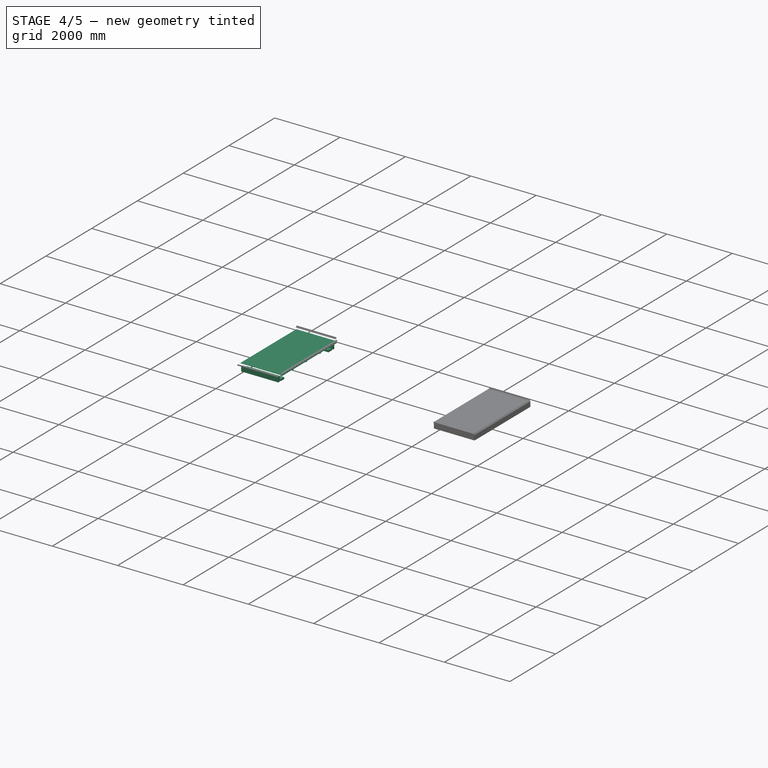
[diagram: stage 4 of 5 — iso view after this stage's code; geometry added in this stage tinted green]
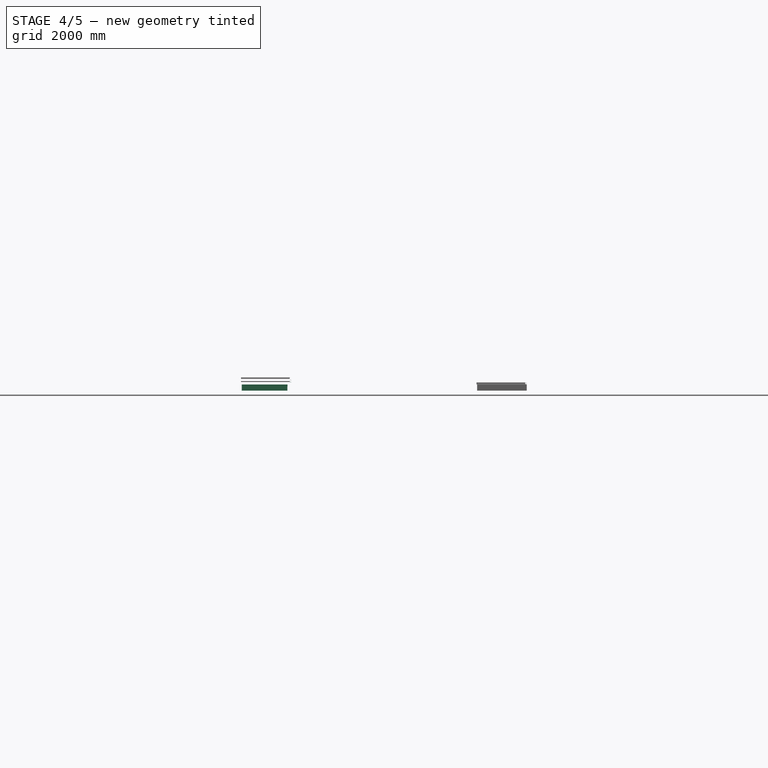
[diagram: stage 4 of 5 — front view after this stage's code; geometry added in this stage tinted green]
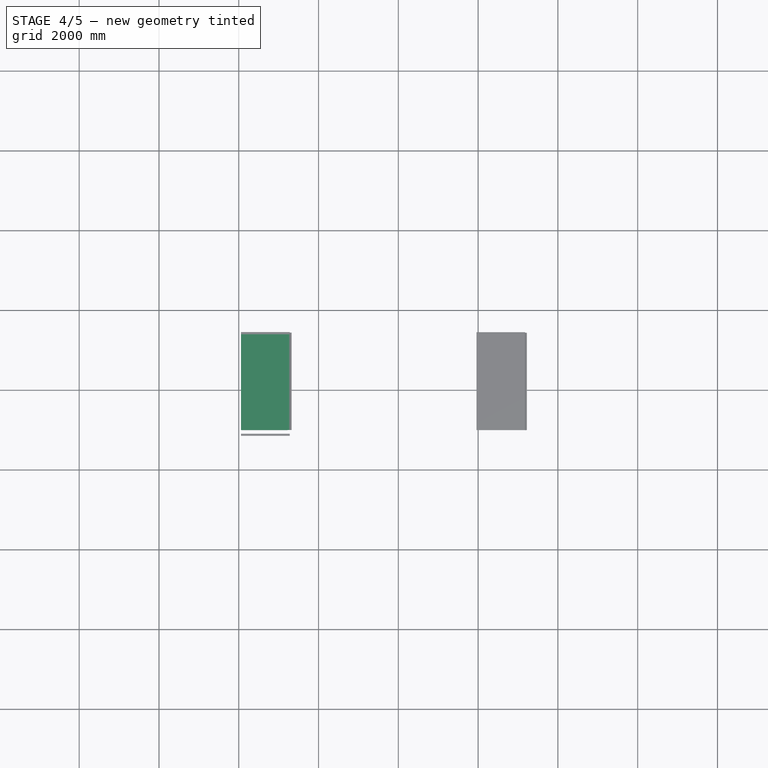
[diagram: stage 4 of 5 — top view after this stage's code; geometry added in this stage tinted green]
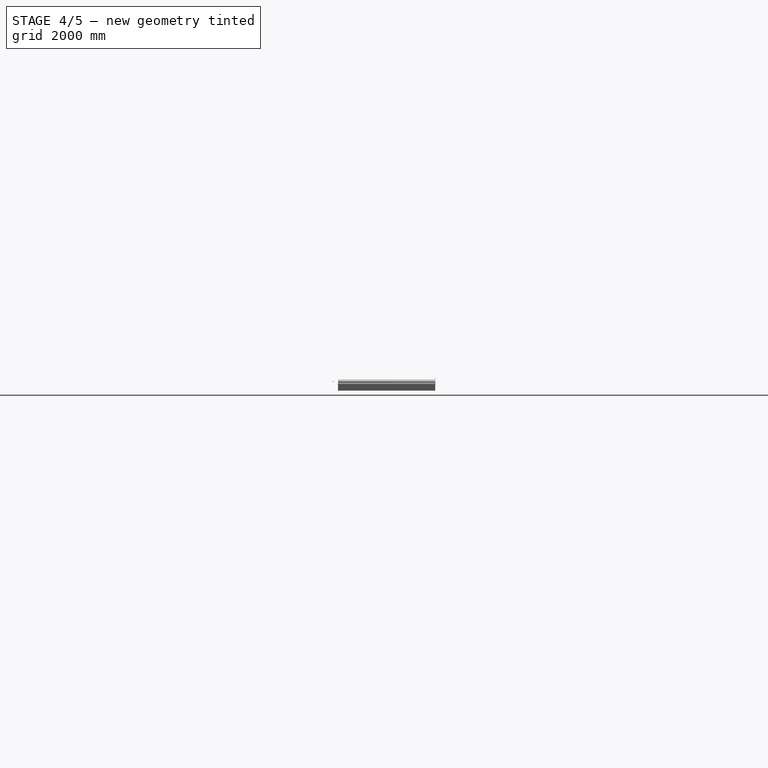
[diagram: stage 4 of 5 — right view after this stage's code; geometry added in this stage tinted green]
FEATURE [Part::FeaturePython] Structure019  label="Clone of 2'9" End lumber 01"  # WARN: FeaturePython — macro-defined, semantics opaque (R4)
  BaseMaterial = -> Material
  CloneOf = -> Structure002
  Height = 2000
  Length = 200
  MoveWithHost = false
  Nodes = (2) [(0,0,0),(0,0,2000)]
  Normal = (0,0,0)
  Placement = pos=(10076.2,-8974.6,0) rot=(0,0,1;0rad)
  Role = 0
  Width = 200
FEATURE [Part::FeaturePython] Structure020  label="Clone of 2'9" End lumber 002"  # WARN: FeaturePython — macro-defined, semantics opaque (R4)
  BaseMaterial = -> Material
  CloneOf = -> Structure002
  Height = 2000
  Length = 200
  MoveWithHost = false
  Nodes = (2) [(0,0,0),(0,0,2000)]
  Normal = (0,0,0)
  Placement = pos=(10076.2,-6587,0) rot=(0,0,1;0rad)
  Role = 0
  Width = 200
FEATURE [Part::Part2DObjectPython] Line  # Draft 2D object (typed FeaturePython)
  ChamferSize = 0
  Closed = false
  End = (11357.7,-6587,-50.8)
  FilletRadius = 0
  Length = 1420.08
  MakeFace = true
  Placement = pos=(-62.35,-2891.82,-558.8) rot=(0,0,1;0rad)
  Points = (2) [(10000,-3695.18,508),(11420.1,-3695.18,508)]
  Start = (9937.66,-6587,-50.8)
FEATURE [Part::Part2DObjectPython] Line001  # Draft 2D object (typed FeaturePython)
  ChamferSize = 0
  Closed = false
  End = (11357.7,-6587,0)
  FilletRadius = 0
  Length = 1420.09
  MakeFace = true
  Placement = pos=(-62.35,-2891.82,-533.4) rot=(0,0,1;0rad)
  Points = (2) [(10000,-3695.18,533.4),(11420.1,-3695.18,533.4)]
  Start = (9937.66,-6587,0)
FEATURE [Part::Part2DObjectPython] Line002  # Draft 2D object (typed FeaturePython)
  ChamferSize = 0
  Closed = false
  End = (11357.7,-6587,-50.8)
  FilletRadius = 0
  Length = 1420.09
  MakeFace = true
  Placement = pos=(-62.353,-2891.82,-584.2) rot=(0,0,1;0rad)
  Points = (2) [(10000,-3695.18,533.4),(11420.1,-3695.18,533.4)]
  Start = (9937.65,-6587,-50.8)
FEATURE [App::DocumentObjectGroup] Group003  label="Annotations"
  Group = -> [Text008,Text007,Text006,Text005,Text004,Text003,Rectangle,Text002,Text001,Text]
FEATURE [Part::FeaturePython] Clone  label="Clone of 3" screw"  # Draft clone (typed FeaturePython)
  Objects = -> [Revolve]
  Placement = pos=(9886.31,-6587,-50.8) rot=(0,0,1;1.5708rad)
  Scale = (1,1,1)
FEATURE [Part::FeaturePython] Clone001  label="Clone of Clone of 3" screw"  # Draft clone (typed FeaturePython)
  Objects = -> [Clone]
  Placement = pos=(9886.3,-6587,0) rot=(0,0,1;1.5708rad)
  Scale = (1,1,1)
FEATURE [Part::FeaturePython] Clone002  label="Clone of Clone of Clone of 3" screw"  # Draft clone (typed FeaturePython)
  Objects = -> [Clone001]
  Placement = pos=(9886.3,-6587,-50.8) rot=(0,0,1;1.5708rad)
  Scale = (1,1,1)
FEATURE [Part::FeaturePython] Clone003  label="Clone of Clone of 3" screw001"  # Draft clone (typed FeaturePython)
  Objects = -> [Clone]
  Placement = pos=(11409.1,-6587,-50.8) rot=(0,0,-1;1.5708rad)
  Scale = (1,1,1)
FEATURE [Part::FeaturePython] Clone004  label="Clone of Clone of Clone of 3" screw001"  # Draft clone (typed FeaturePython)
  Objects = -> [Clone003]
  Placement = pos=(11409.1,-6587,0) rot=(0,0,-1;1.5708rad)
  Scale = (1,1,1)
FEATURE [Part::FeaturePython] Clone005  label="Clone of Clone of Clone of Clone of 3" screw001"  # Draft clone (typed FeaturePython)
  Objects = -> [Clone004]
  Placement = pos=(11409.1,-6587,-50.8) rot=(0,0,-1;1.5708rad)
  Scale = (1,1,1)
FEATURE [Part::Part2DObjectPython] Line003  # Draft 2D object (typed FeaturePython)
  ChamferSize = 0
  Closed = false
  End = (11357.7,-8974.6,50.8)
  FilletRadius = 0
  Length = 1420.08
  MakeFace = true
  Placement = pos=(-62.35,-5279.42,-457.2) rot=(0,0,1;0rad)
  Points = (2) [(10000,-3695.18,508),(11420.1,-3695.18,508)]
  Start = (9937.66,-8974.6,50.8)
FEATURE [Part::Part2DObjectPython] Line004  # Draft 2D object (typed FeaturePython)
  ChamferSize = 0
  Closed = false
  End = (11357.7,-8974.6,0)
  FilletRadius = 0
  Length = 1420.09
  MakeFace = true
  Placement = pos=(-62.35,-5279.42,-533.4) rot=(0,0,1;0rad)
  Points = (2) [(10000,-3695.18,533.4),(11420.1,-3695.18,533.4)]
  Start = (9937.66,-8974.6,0)
FEATURE [Part::Part2DObjectPython] Line005  # Draft 2D object (typed FeaturePython)
  ChamferSize = 0
  Closed = false
  End = (11357.7,-8974.6,-50.8)
  FilletRadius = 0
  Length = 1420.09
  MakeFace = true
  Placement = pos=(-62.353,-5279.42,-584.2) rot=(0,0,1;0rad)
  Points = (2) [(10000,-3695.18,533.4),(11420.1,-3695.18,533.4)]
  Start = (9937.65,-8974.6,-50.8)
FEATURE [Part::Feature] Clone006  label="Clone of 3" screw001"
  Placement = pos=(9886.31,-8974.6,50.8) rot=(0,0,1;1.5708rad)
  shape: bbox 85.92 x 19.33 x 19.33 mm, 4 faces, 0 solids (baked)
FEATURE [Part::Feature] Clone007  label="Clone of Clone of 3" screw002"
  Placement = pos=(9886.3,-8974.6,0) rot=(0,0,1;1.5708rad)
  shape: bbox 85.92 x 19.33 x 19.33 mm, 4 faces, 0 solids (baked)
FEATURE [Part::Feature] Clone008  label="Clone of Clone of Clone of 3" screw002"
  Placement = pos=(9886.3,-8974.6,-50.8) rot=(0,0,1;1.5708rad)
  shape: bbox 85.92 x 19.33 x 19.33 mm, 4 faces, 0 solids (baked)
FEATURE [Part::Feature] Clone009  label="Clone of Clone of 3" screw003"
  Placement = pos=(11409.1,-8974.6,50.8) rot=(0,0,-1;1.5708rad)
  shape: bbox 85.92 x 19.33 x 19.33 mm, 4 faces, 0 solids (baked)
FEATURE [Part::Feature] Clone010  label="Clone of Clone of Clone of 3" screw003"
  Placement = pos=(11409.1,-8974.6,0) rot=(0,0,-1;1.5708rad)
  shape: bbox 85.92 x 19.33 x 19.33 mm, 4 faces, 0 solids (baked)
FEATURE [Part::Feature] Clone011  label="Clone of Clone of Clone of Clone of 3" screw002"
  Placement = pos=(11409.1,-8974.6,-50.8) rot=(0,0,-1;1.5708rad)
  shape: bbox 85.92 x 19.33 x 19.33 mm, 4 faces, 0 solids (baked)
FEATURE [Part::FeaturePython] Structure021  label="Clone of 2'9" End lumber 003"  # WARN: FeaturePython — macro-defined, semantics opaque (R4)
  BaseMaterial = -> Material
  CloneOf = -> Structure002
  Height = 2000
  Length = 200
  MoveWithHost = false
  Nodes = (2) [(0,0,0),(0,0,2000)]
  Normal = (0,0,0)
  Placement = pos=(10076.2,-8822.2,-50.8) rot=(1,0,0;1.5708rad)
  Role = 0
  Width = 200
FEATURE [Part::Part2DObjectPython] Line006  # Draft 2D object (typed FeaturePython)
  ChamferSize = 0
  Closed = false
  End = (10667.4,-9171.05,-152.4)
  FilletRadius = 0
  Length = 671.05
  MakeFace = true
  Placement = pos=(1230.41,-342.869,-127) rot=(0,0,1;0rad)
  Points = (2) [(9437,-8157.13,-25.4),(9437,-8828.18,-25.4)]
  Start = (10667.4,-8500,-152.4)
FEATURE [Part::Part2DObjectPython] Line007  # Draft 2D object (typed FeaturePython)
  ChamferSize = 0
  Closed = false
  End = (10362.6,-9171.05,-152.4)
  FilletRadius = 0
  Length = 671.05
  MakeFace = true
  Placement = pos=(925.605,-342.869,-127) rot=(0,0,1;0rad)
  Points = (2) [(9437,-8157.13,-25.4),(9437,-8828.18,-25.4)]
  Start = (10362.6,-8500,-152.4)
FEATURE [Part::Part2DObjectPython] Line008  # Draft 2D object (typed FeaturePython)
  ChamferSize = 0
  Closed = false
  End = (10972.2,-9171.05,-152.4)
  FilletRadius = 0
  Length = 671.05
  MakeFace = true
  Placement = pos=(1535.21,-342.869,-127) rot=(0,0,1;0rad)
  Points = (2) [(9437,-8157.13,-25.4),(9437,-8828.18,-25.4)]
  Start = (10972.2,-8500,-152.4)
FEATURE [Part::FeaturePython] Clone012  label="Clone of Clone of 3" screw004"  # Draft clone (typed FeaturePython)
  Objects = -> [Clone]
  Placement = pos=(10362.6,-9222.4,-152.4) rot=(0,0,1;3.14159rad)
  Scale = (1,1,1)
FEATURE [Part::FeaturePython] Clone013  label="Clone of Clone of Clone of 3" screw004"  # Draft clone (typed FeaturePython)
  Objects = -> [Clone012]
  Placement = pos=(10667.4,-9222.4,-152.4) rot=(0,0,1;3.14159rad)
  Scale = (1,1,1)
FEATURE [Part::FeaturePython] Clone014  label="Clone of Clone of Clone of Clone of 3" screw004"  # Draft clone (typed FeaturePython)
  Objects = -> [Clone013]
  Placement = pos=(10972.2,-9222.4,-152.4) rot=(0,0,1;3.14159rad)
  Scale = (1,1,1)
FEATURE [Part::FeaturePython] Structure022  label="Clone of 2'9" End lumber 004"  # WARN: FeaturePython — macro-defined, semantics opaque (R4)
  BaseMaterial = -> Material
  CloneOf = -> Structure002
  Height = 2000
  Length = 200
  MoveWithHost = false
  Nodes = (2) [(0,0,0),(0,0,2000)]
  Normal = (0,0,0)
  Placement = pos=(10076.2,-6739.4,-50.8) rot=(1,0,0;1.5708rad)
  Role = 0
  Width = 200
FEATURE [Part::Part2DObjectPython] Line009  # Draft 2D object (typed FeaturePython)
  ChamferSize = 0
  Closed = false
  End = (10972.2,-6390.55,-50.8)
  FilletRadius = 0
  Length = 671.05
  MakeFace = true
  Placement = pos=(20409.2,-15218.7,-25.4) rot=(0,0,1;3.14159rad)
  Points = (2) [(9437,-8157.13,-25.4),(9437,-8828.18,-25.4)]
  Start = (10972.2,-7061.6,-50.8)
FEATURE [Part::Part2DObjectPython] Line010  # Draft 2D object (typed FeaturePython)
  ChamferSize = 0
  Closed = false
  End = (10667.4,-6390.55,-50.8)
  FilletRadius = 0
  Length = 671.05
  MakeFace = true
  Placement = pos=(20104.4,-15218.7,-25.4) rot=(0,0,1;3.14159rad)
  Points = (2) [(9437,-8157.13,-25.4),(9437,-8828.18,-25.4)]
  Start = (10667.4,-7061.6,-50.8)
FEATURE [Part::Part2DObjectPython] Line011  # Draft 2D object (typed FeaturePython)
  ChamferSize = 0
  Closed = false
  End = (10362.6,-6390.55,-50.8)
  FilletRadius = 0
  Length = 671.05
  MakeFace = true
  Placement = pos=(19799.6,-15218.7,-25.4) rot=(0,0,1;3.14159rad)
  Points = (2) [(9437,-8157.13,-25.4),(9437,-8828.18,-25.4)]
  Start = (10362.6,-7061.6,-50.8)
FEATURE [Part::Feature] Clone015  label="Clone of Clone of Clone of Clone of 3" screw005"
  Placement = pos=(10362.6,-6339.2,-50.8) rot=(0,0,1;0rad)
  shape: bbox 19.33 x 85.92 x 19.33 mm, 4 faces, 0 solids (baked)
FEATURE [Part::Feature] Clone016  label="Clone of Clone of Clone of 3" screw005"
  Placement = pos=(10667.4,-6339.2,-50.8) rot=(0,0,1;0rad)
  shape: bbox 19.33 x 85.92 x 19.33 mm, 4 faces, 0 solids (baked)
FEATURE [Part::Feature] Clone017  label="Clone of Clone of 3" screw005"
  Placement = pos=(10972.2,-6339.2,-50.8) rot=(0,0,1;0rad)
  shape: bbox 19.33 x 85.92 x 19.33 mm, 4 faces, 0 solids (baked)
FEATURE [Part::Feature] Clone026  label="Clone of Clone of 3" screw010"
  Placement = pos=(9886.31,-7164.85,50.8) rot=(0,0,1;1.5708rad)
  shape: bbox 85.92 x 19.33 x 19.33 mm, 4 faces, 0 solids (baked)
FEATURE [Part::Feature] Clone027  label="Clone of Clone of Clone of 3" screw010"
  Placement = pos=(11409.1,-7164.85,50.8) rot=(0,0,-1;1.5708rad)
  shape: bbox 85.92 x 19.33 x 19.33 mm, 4 faces, 0 solids (baked)
FEATURE [Part::Part2DObjectPython] Line016  # Draft 2D object (typed FeaturePython)
  ChamferSize = 0
  Closed = false
  End = (11357.8,-7164.85,50.8)
  FilletRadius = 0
  Length = 1420.09
  MakeFace = true
  Placement = pos=(-62.3466,-3469.67,-584.2) rot=(0,0,1;0rad)
  Points = (2) [(10000,-3695.18,635),(11420.1,-3695.18,635)]
  Start = (9937.66,-7164.85,50.8)
FEATURE [Part::Feature] Clone028  label="Clone of Clone of 3" screw011"
  Placement = pos=(9886.31,-7768.1,50.8) rot=(0,0,1;1.5708rad)
  shape: bbox 85.92 x 19.33 x 19.33 mm, 4 faces, 0 solids (baked)
FEATURE [Part::Feature] Clone029  label="Clone of Clone of Clone of 3" screw011"
  Placement = pos=(11409.1,-7768.1,50.8) rot=(0,0,-1;1.5708rad)
  shape: bbox 85.92 x 19.33 x 19.33 mm, 4 faces, 0 solids (baked)
FEATURE [Part::Part2DObjectPython] Line017  # Draft 2D object (typed FeaturePython)
  ChamferSize = 0
  Closed = false
  End = (11357.8,-7768.1,50.8)
  FilletRadius = 0
  Length = 1420.09
  MakeFace = true
  Placement = pos=(-62.3466,-4072.92,-584.2) rot=(0,0,1;0rad)
  Points = (2) [(10000,-3695.18,635),(11420.1,-3695.18,635)]
  Start = (9937.66,-7768.1,50.8)
FEATURE [Part::Feature] Clone030  label="Clone of Clone of 3" screw012"
  Placement = pos=(9886.31,-8371.35,50.8) rot=(0,0,1;1.5708rad)
  shape: bbox 85.92 x 19.33 x 19.33 mm, 4 faces, 0 solids (baked)
FEATURE [Part::Feature] Clone031  label="Clone of Clone of Clone of 3" screw012"
  Placement = pos=(11409.1,-8371.35,50.8) rot=(0,0,-1;1.5708rad)
  shape: bbox 85.92 x 19.33 x 19.33 mm, 4 faces, 0 solids (baked)
FEATURE [Part::Part2DObjectPython] Line018  # Draft 2D object (typed FeaturePython)
  ChamferSize = 0
  Closed = false
  End = (11357.8,-8371.35,50.8)
  FilletRadius = 0
  Length = 1420.09
  MakeFace = true
  Placement = pos=(-62.3466,-4676.17,-584.2) rot=(0,0,1;0rad)
  Points = (2) [(10000,-3695.18,635),(11420.1,-3695.18,635)]
  Start = (9937.66,-8371.35,50.8)
FEATURE [Part::FeaturePython] Structure027  label="Clone of 2'9" Reinforcement 005"  # WARN: FeaturePython — macro-defined, semantics opaque (R4)
  BaseMaterial = -> Material
  CloneOf = -> Structure006
  Height = 2000
  Length = 200
  MoveWithHost = false
  Nodes = (2) [(0,0,0),(0,0,2000)]
  Normal = (0,0,0)
  Placement = pos=(10076.2,-7164.85,50.8) rot=(0,0,1;0rad)
  Role = 0
  Width = 200
FEATURE [Part::FeaturePython] Structure028  label="Clone of 2'9" Reinforcement 006"  # WARN: FeaturePython — macro-defined, semantics opaque (R4)
  BaseMaterial = -> Material
  CloneOf = -> Structure006
  Height = 2000
  Length = 200
  MoveWithHost = false
  Nodes = (2) [(0,0,0),(0,0,2000)]
  Normal = (0,0,0)
  Placement = pos=(10076.2,-7768.1,50.8) rot=(0,0,1;0rad)
  Role = 0
  Width = 200
FEATURE [Part::FeaturePython] Structure029  label="Clone of 2'9" Reinforcement 007"  # WARN: FeaturePython — macro-defined, semantics opaque (R4)
  BaseMaterial = -> Material
  CloneOf = -> Structure006
  Height = 2000
  Length = 200
  MoveWithHost = false
  Nodes = (2) [(0,0,0),(0,0,2000)]
  Normal = (0,0,0)
  Placement = pos=(10079.9,-8368.12,50.8) rot=(0,0,1;0rad)
  Role = 0
  Width = 200
FEATURE [Part::Part2DObjectPython] Line019  # Draft 2D object (typed FeaturePython)
  ChamferSize = 0
  Closed = false
  End = (11357.7,-8823.9,-50.8)
  FilletRadius = 0
  Length = 1420.09
  MakeFace = true
  Placement = pos=(-62.353,-5128.72,-584.2) rot=(0,0,1;0rad)
  Points = (2) [(10000,-3695.18,533.4),(11420.1,-3695.18,533.4)]
  Start = (9937.65,-8823.9,-50.8)
FEATURE [Part::Feature] Clone032  label="Clone of Clone of Clone of 3" screw013"
  Placement = pos=(9886.3,-8823.9,-50.8) rot=(0,0,1;1.5708rad)
  shape: bbox 85.92 x 19.33 x 19.33 mm, 4 faces, 0 solids (baked)
FEATURE [Part::Feature] Clone033  label="Clone of Clone of Clone of Clone of 3" screw006"
  Placement = pos=(11409.1,-8823.9,-50.8) rot=(0,0,-1;1.5708rad)
  shape: bbox 85.92 x 19.33 x 19.33 mm, 4 faces, 0 solids (baked)
FEATURE [Part::Part2DObjectPython] Line020  # Draft 2D object (typed FeaturePython)
  ChamferSize = 0
  Closed = false
  End = (11357.7,-8867.16,-50.8)
  FilletRadius = 0
  Length = 1420.09
  MakeFace = true
  Placement = pos=(-62.353,-5171.98,-584.2) rot=(0,0,1;0rad)
  Points = (2) [(10000,-3695.18,533.4),(11420.1,-3695.18,533.4)]
  Start = (9937.65,-8867.16,-50.8)
FEATURE [Part::Feature] Clone034  label="Clone of Clone of Clone of 3" screw014"
  Placement = pos=(9886.3,-8867.16,-50.8) rot=(0,0,1;1.5708rad)
  shape: bbox 85.92 x 19.33 x 19.33 mm, 4 faces, 0 solids (baked)
FEATURE [Part::Feature] Clone035  label="Clone of Clone of Clone of Clone of 3" screw007"
  Placement = pos=(11409.1,-8867.16,-50.8) rot=(0,0,-1;1.5708rad)
  shape: bbox 85.92 x 19.33 x 19.33 mm, 4 faces, 0 solids (baked)
FEATURE [Part::Feature] Clone036  label="Clone of Clone of Clone of 3" screw015"
  Placement = pos=(9886.3,-8780.65,-50.8) rot=(0,0,1;1.5708rad)
  shape: bbox 85.92 x 19.33 x 19.33 mm, 4 faces, 0 solids (baked)
FEATURE [Part::Part2DObjectPython] Line021  # Draft 2D object (typed FeaturePython)
  ChamferSize = 0
  Closed = false
  End = (11357.7,-8780.65,-50.8)
  FilletRadius = 0
  Length = 1420.09
  MakeFace = true
  Placement = pos=(-62.353,-5085.47,-584.2) rot=(0,0,1;0rad)
  Points = (2) [(10000,-3695.18,533.4),(11420.1,-3695.18,533.4)]
  Start = (9937.65,-8780.65,-50.8)
FEATURE [Part::Feature] Clone037  label="Clone of Clone of Clone of Clone of 3" screw008"
  Placement = pos=(11256.7,-8780.65,50.8) rot=(0,0,-1;1.5708rad)
  shape: bbox 85.92 x 19.33 x 19.33 mm, 4 faces, 0 solids (baked)
FEATURE [Part::Feature] Clone038  label="Clone of Clone of Clone of 3" screw016"
  Placement = pos=(9886.3,-6697.85,-50.8) rot=(0,0,1;1.5708rad)
  shape: bbox 85.92 x 19.33 x 19.33 mm, 4 faces, 0 solids (baked)
FEATURE [Part::Feature] Clone039  label="Clone of Clone of Clone of 3" screw017"
  Placement = pos=(9886.3,-6741.1,50.8) rot=(0,0,1;1.5708rad)
  shape: bbox 85.92 x 19.33 x 19.33 mm, 4 faces, 0 solids (baked)
FEATURE [Part::Feature] Clone040  label="Clone of Clone of Clone of 3" screw018"
  Placement = pos=(9886.3,-6784.36,-50.8) rot=(0,0,1;1.5708rad)
  shape: bbox 85.92 x 19.33 x 19.33 mm, 4 faces, 0 solids (baked)
FEATURE [Part::Part2DObjectPython] Line022  # Draft 2D object (typed FeaturePython)
  ChamferSize = 0
  Closed = false
  End = (11357.7,-6741.1,50.8)
  FilletRadius = 0
  Length = 1420.09
  MakeFace = true
  Placement = pos=(-62.353,-3045.92,-482.6) rot=(0,0,1;0rad)
  Points = (2) [(10000,-3695.18,533.4),(11420.1,-3695.18,533.4)]
  Start = (9937.65,-6741.1,50.8)
FEATURE [Part::Feature] Clone041  label="Clone of Clone of Clone of Clone of 3" screw009"
  Placement = pos=(11409.1,-6741.1,50.8) rot=(0,0,-1;1.5708rad)
  shape: bbox 85.92 x 19.33 x 19.33 mm, 4 faces, 0 solids (baked)
FEATURE [Part::Part2DObjectPython] Line023  # Draft 2D object (typed FeaturePython)
  ChamferSize = 0
  Closed = false
  End = (11357.7,-6784.36,-50.8)
  FilletRadius = 0
  Length = 1420.09
  MakeFace = true
  Placement = pos=(-62.353,-3089.18,-584.2) rot=(0,0,1;0rad)
  Points = (2) [(10000,-3695.18,533.4),(11420.1,-3695.18,533.4)]
  Start = (9937.65,-6784.36,-50.8)
FEATURE [Part::Feature] Clone042  label="Clone of Clone of Clone of Clone of 3" screw010"
  Placement = pos=(11409.1,-6784.36,-50.8) rot=(0,0,-1;1.5708rad)
  shape: bbox 85.92 x 19.33 x 19.33 mm, 4 faces, 0 solids (baked)
FEATURE [Part::Part2DObjectPython] Line024  # Draft 2D object (typed FeaturePython)
  ChamferSize = 0
  Closed = false
  End = (11357.7,-6697.85,-50.8)
  FilletRadius = 0
  Length = 1420.09
  MakeFace = true
  Placement = pos=(-62.353,-3002.67,-584.2) rot=(0,0,1;0rad)
  Points = (2) [(10000,-3695.18,533.4),(11420.1,-3695.18,533.4)]
  Start = (9937.65,-6697.85,-50.8)
FEATURE [Part::Feature] Clone043  label="Clone of Clone of Clone of Clone of 3" screw011"
  Placement = pos=(11409.1,-6697.85,-50.8) rot=(0,0,-1;1.5708rad)
  shape: bbox 85.92 x 19.33 x 19.33 mm, 4 faces, 0 solids (baked)
FEATURE [App::DocumentObjectGroup] Group005  label="Lumbers"
  Group = -> [Structure001,Structure002,Structure003,Structure004,Structure005,Structure006,Structure007,Structure008,Structure]
FEATURE [App::DocumentObjectGroup] Group006  label="Accessories"
  Group = -> [Revolve002,Pad,Array,Array001]
FEATURE [App::DocumentObjectGroup] Group007  label="Aluminium profiles"
  Group = -> [Structure013,Structure014,Structure015,Structure016]
FEATURE [App::DocumentObjectGroup] Group  label="Components"
  Group = -> [Panel,Group003,Group005,Group006,Group007]
FEATURE [Part::FeaturePython] Panel001  label="Clone of 16'x3' Double-walled polycarbonate panel"  # WARN: FeaturePython — macro-defined, semantics opaque (R4)
  BaseMaterial = -> Material001
  CloneOf = -> Panel
  Length = 0
  MoveWithHost = false
  Placement = pos=(5278.84,-9000,145.639) rot=(0,0,1;1.5708rad)
  Role = 0
  Sheets = 1
  Thickness = 0
  Width = 0
FEATURE [Part::FeaturePython] Structure030  label="Clone of Side aluminium profile (bottom)"  # WARN: FeaturePython — macro-defined, semantics opaque (R4)
  BaseMaterial = -> Material002
  CloneOf = -> Structure013
  Height = 2000
  Length = 200
  MoveWithHost = false
  Nodes = (2) [(0,0,0),(0,0,2000)]
  Normal = (0,0,0)
  Placement = pos=(11295.1,-6561.6,134.522) rot=(1,0,0;1.5708rad)
  Role = 0
  Width = 200
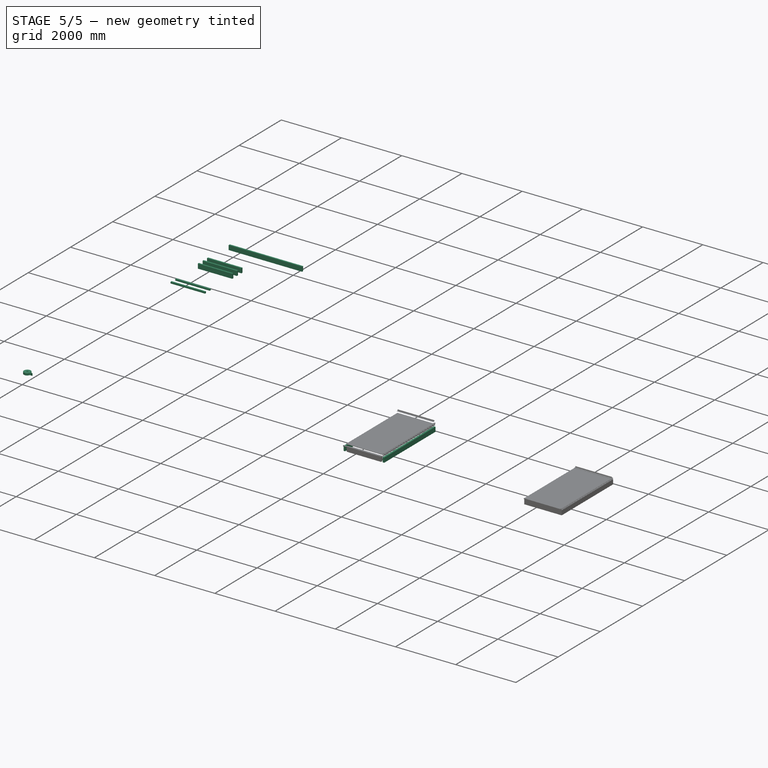
[diagram: stage 5 of 5 — iso view after this stage's code; geometry added in this stage tinted green]
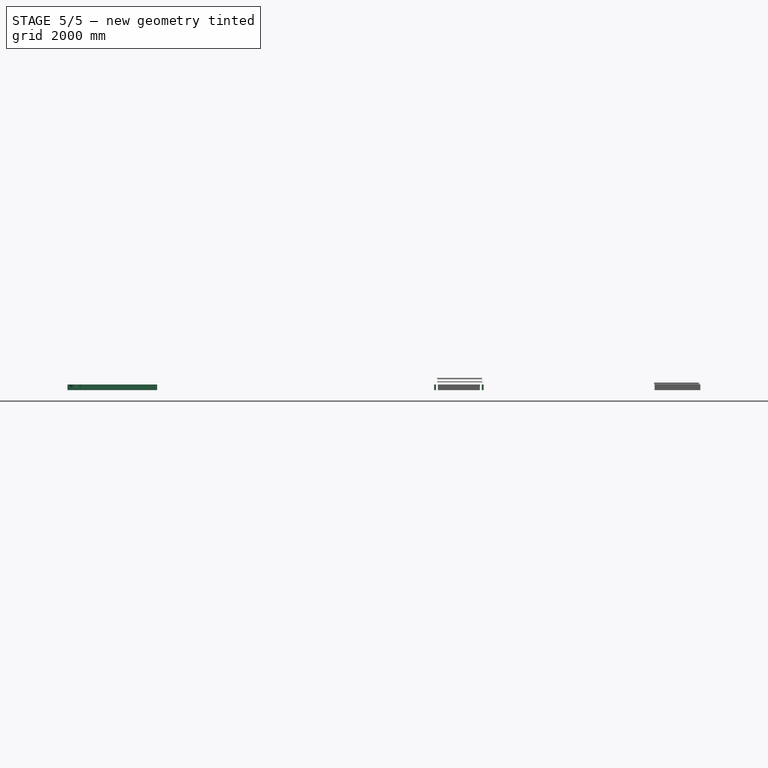
[diagram: stage 5 of 5 — front view after this stage's code; geometry added in this stage tinted green]
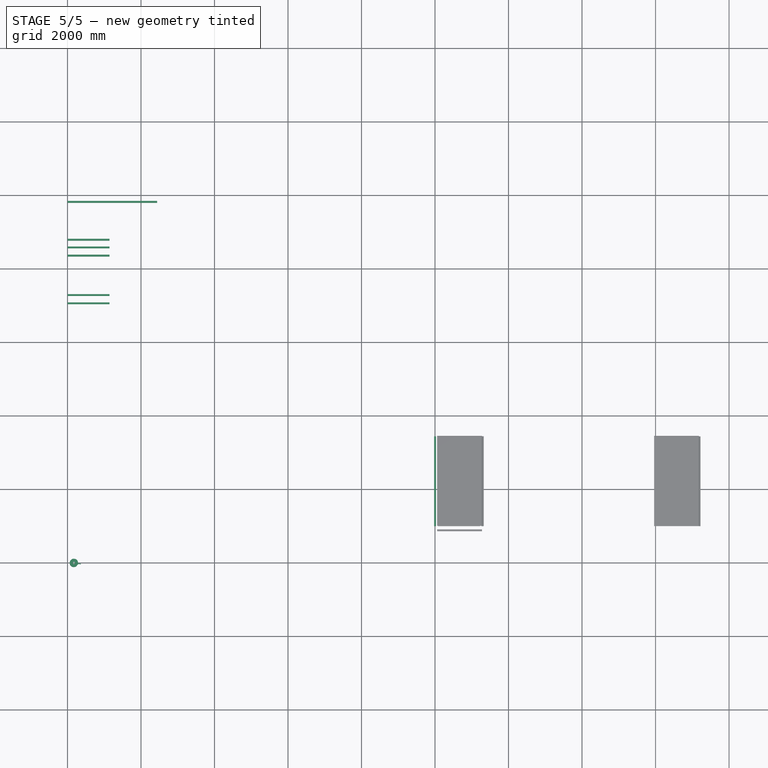
[diagram: stage 5 of 5 — top view after this stage's code; geometry added in this stage tinted green]
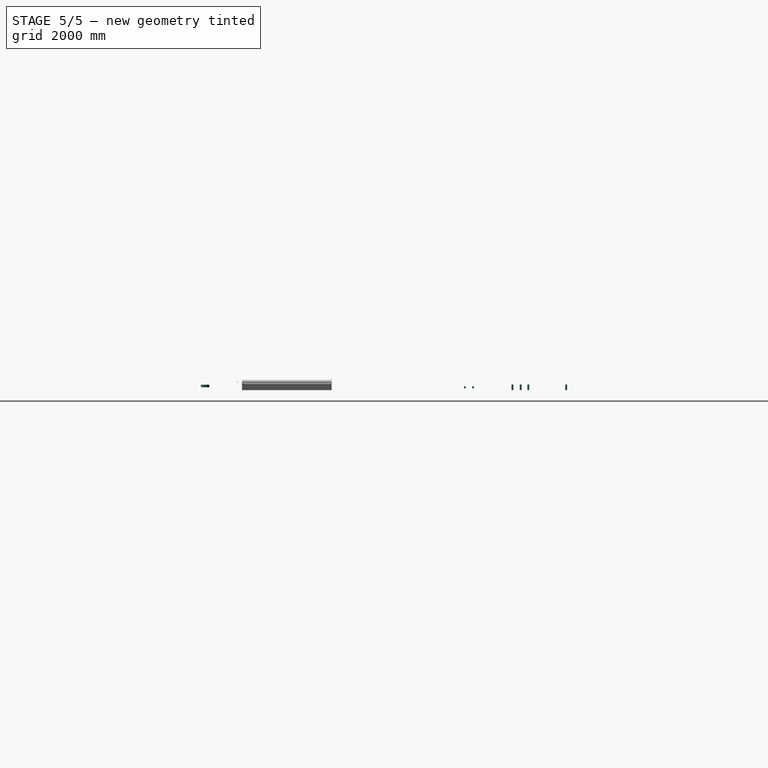
[diagram: stage 5 of 5 — right view after this stage's code; geometry added in this stage tinted green]
FEATURE [Part::FeaturePython] Structure001  label="16' Side lumber 02"  # WARN: FeaturePython — macro-defined, semantics opaque (R4)
  BaseMaterial = -> Material
  CloneOf = -> Structure
  Height = 2000
  Length = 200
  MoveWithHost = false
  Nodes = (2) [(0,0,0),(0,0,2000)]
  Normal = (0,0,0)
  Placement = pos=(0,-180.254,0) rot=(0,0,1;0rad)
  Role = 0
  Width = 200
FEATURE [Part::FeaturePython] Structure003  label="2'9" End lumber 02"  # WARN: FeaturePython — macro-defined, semantics opaque (R4)
  BaseMaterial = -> Material
  CloneOf = -> Structure002
  Height = 2000
  Length = 200
  MoveWithHost = false
  Nodes = (2) [(0,0,0),(0,0,2000)]
  Normal = (0,0,0)
  Placement = pos=(0,-1209.83,0) rot=(0,0,1;0rad)
  Role = 0
  Width = 200
FEATURE [Part::FeaturePython] Structure004  label="2'9" Corner lumber 01"  # WARN: FeaturePython — macro-defined, semantics opaque (R4)
  BaseMaterial = -> Material
  CloneOf = -> Structure002
  Height = 2000
  Length = 200
  MoveWithHost = false
  Nodes = (2) [(0,0,0),(0,0,2000)]
  Normal = (0,0,0)
  Placement = pos=(0,-1418.92,0) rot=(0,0,1;0rad)
  Role = 0
  Width = 200
FEATURE [Part::FeaturePython] Structure005  label="2'9" Corner lumber 02"  # WARN: FeaturePython — macro-defined, semantics opaque (R4)
  BaseMaterial = -> Material
  CloneOf = -> Structure002
  Height = 2000
  Length = 200
  MoveWithHost = false
  Nodes = (2) [(0,0,0),(0,0,2000)]
  Normal = (0,0,0)
  Placement = pos=(0,-1642.44,0) rot=(0,0,1;0rad)
  Role = 0
  Width = 200
FEATURE [Part::FeaturePython] Structure007  label="2'9" Reinforcement 07"  # WARN: FeaturePython — macro-defined, semantics opaque (R4)
  BaseMaterial = -> Material
  CloneOf = -> Structure006
  Height = 2000
  Length = 200
  MoveWithHost = false
  Nodes = (2) [(0,0,0),(0,0,2000)]
  Normal = (0,0,0)
  Placement = pos=(0,-2714.92,0) rot=(0,0,1;0rad)
  Role = 0
  Width = 200
FEATURE [Part::FeaturePython] Structure008  label="2'9" Reinforcement 02"  # WARN: FeaturePython — macro-defined, semantics opaque (R4)
  BaseMaterial = -> Material
  CloneOf = -> Structure006
  Height = 2000
  Length = 200
  MoveWithHost = false
  Nodes = (2) [(0,0,0),(0,0,2000)]
  Normal = (0,0,0)
  Placement = pos=(0,-2938.44,0) rot=(0,0,1;0rad)
  Role = 0
  Width = 200
FEATURE [App::Annotation] Text006  label="Top and bottom aluminium profiles description"
  LabelText = 4' bottom aluminium profile | 4' flashing (top) profile
  Position = (5.16381,-6431.01,0)
FEATURE [Sketcher::SketchObject] Sketch004
  sketch-geometry (4):
    g0: LineSegment StartX=0 StartY=-51.3548 StartZ=0 EndX=-3.23249 EndY=-47.684 EndZ=0
    g1: LineSegment StartX=-3.23249 StartY=-47.684 StartZ=0 EndX=-3.23249 EndY=28.516 EndZ=0
    g2: LineSegment StartX=-3.23249 StartY=28.516 StartZ=0 EndX=-9.66342 EndY=34.5624 EndZ=0
    g3: LineSegment StartX=-9.66342 StartY=34.5624 StartZ=0 EndX=0 EndY=34.5624 EndZ=0
  constraints (8):
    c: Coincident(g0,g1)
    c: Vertical(g1)
    c: Coincident(g1,g2)
    c: Coincident(g2,g3)
    c: PointOnObject(g3,g-2)
    c: Horizontal(g3)
    c: PointOnObject(g0,g-2)
    c: DistanceY(g1) = 76.2
FEATURE [Part::Revolution] Revolve  label="3" screw"
  Angle = 360
  Axis = (0,1,0)
  Base = (0,0,0)
  Placement = pos=(0,-8742.55,0) rot=(0,0,1;0rad)
  Solid = true
  Source = -> Sketch004
FEATURE [Part::FeaturePython] Array  label="3" Screws"  # Draft array (typed FeaturePython)
  Angle = 360
  ArrayType = 0
  Axis = (0,0,1)
  Base = -> Revolve
  Center = (0,0,0)
  Fuse = false
  IntervalAxis = (0,0,0)
  IntervalX = (50,0,0)
  IntervalY = (0,1,0)
  IntervalZ = (0,0,0)
  NumberPolar = 1
  NumberX = 36
  NumberY = 1
  NumberZ = 1
  Placement = pos=(0,1071.32,0) rot=(0,0,1;0rad)
FEATURE [App::Annotation] Text007  label="Screws description"
  LabelText = 36 x 3" screws | 16 x 1" screws + washers (size depends on the choosen aluminium profiles)
  Position = (5.23079,-7381.63,0)
FEATURE [Sketcher::SketchObject] Sketch005
  sketch-geometry (8):
    g0: LineSegment StartX=0 StartY=-39.8998 StartZ=0 EndX=-3.15415 EndY=-37.1964 EndZ=0
    g1: LineSegment StartX=-3.15415 StartY=-37.1964 StartZ=0 EndX=-3.15415 EndY=-11.7964 EndZ=0
    g2: LineSegment StartX=-3.15415 StartY=-11.7964 StartZ=0 EndX=-6.31218 EndY=-7.94085 EndZ=0
    g3: LineSegment StartX=-6.31218 StartY=-7.94085 StartZ=0 EndX=0 EndY=-7.94085 EndZ=0
    g4: LineSegment StartX=-4.26074 StartY=-13.2651 StartZ=0 EndX=-10.8688 EndY=-13.2651 EndZ=0
    g5: LineSegment StartX=-10.8688 StartY=-13.2651 StartZ=0 EndX=-10.8688 EndY=-16.7574 EndZ=0
    g6: LineSegment StartX=-10.8688 StartY=-16.7574 StartZ=0 EndX=-4.26074 EndY=-16.7574 EndZ=0
    g7: LineSegment StartX=-4.26074 StartY=-16.7574 StartZ=0 EndX=-4.26074 EndY=-13.2651 EndZ=0
  constraints (16):
    c: Coincident(g0,g1)
    c: Vertical(g1)
    c: Coincident(g1,g2)
    c: Coincident(g2,g3)
    c: PointOnObject(g3,g-2)
    c: Horizontal(g3)
    c: PointOnObject(g0,g-2)
    c: DistanceY(g1) = 25.4
    c: Coincident(g4,g5)
    c: Coincident(g5,g6)
    c: Coincident(g6,g7)
    c: Coincident(g7,g4)
    c: Horizontal(g4)
    c: Horizontal(g6)
    c: Vertical(g5)
    c: Vertical(g7)
FEATURE [Part::Revolution] Revolve001  label="1" screw"
  Angle = 360
  Axis = (0,1,0)
  Base = (0,0,0)
  Placement = pos=(0,-8912.47,0) rot=(0,0,1;0rad)
  Solid = true
  Source = -> Sketch005
FEATURE [Part::FeaturePython] Array001  label="1" Screws + washers"  # Draft array (typed FeaturePython)
  Angle = 360
  ArrayType = 0
  Axis = (0,0,1)
  Base = -> Revolve001
  Center = (0,0,0)
  Fuse = false
  IntervalAxis = (0,0,0)
  IntervalX = (50,0,0)
  IntervalY = (0,1,0)
  IntervalZ = (0,0,0)
  NumberPolar = 1
  NumberX = 16
  NumberY = 1
  NumberZ = 1
  Placement = pos=(0,1071.32,0) rot=(0,0,1;0rad)
FEATURE [Sketcher::SketchObject] Sketch006
  Placement = pos=(173.876,-10004.6,0) rot=(0,0,1;0rad)
  sketch-geometry (5):
    g0: Circle CenterX=0 CenterY=0 CenterZ=0 NormalX=0 NormalY=0 NormalZ=1 Radius=26.903
    g1: ArcOfCircle CenterX=0 CenterY=0 CenterZ=0 NormalX=0 NormalY=0 NormalZ=1 Radius=114.247 StartAngle=6.13597 EndAngle=11.7966
    g2: ArcOfCircle CenterX=143.944 CenterY=-95.1101 CenterZ=0 NormalX=0 NormalY=0 NormalZ=1 Radius=63.8422 StartAngle=0.806878 EndAngle=2.89481
    g3: ArcOfCircle CenterX=143.944 CenterY=-95.1101 CenterZ=0 NormalX=0 NormalY=0 NormalZ=1 Radius=84.2369 StartAngle=1.01893 EndAngle=1.9468
    g4: LineSegment StartX=188.107 StartY=-23.3783 StartZ=0 EndX=188.107 EndY=-49.0077 EndZ=0
  constraints (8):
    c: Coincident(g0,g-1)
    c: Coincident(g1,g-1)
    c: Coincident(g2,g1)
    c: Coincident(g3,g2)
    c: Coincident(g3,g1)
    c: Coincident(g4,g3)
    c: Coincident(g4,g2)
    c: Vertical(g4)
FEATURE [PartDesign::Pad] Pad  label="Sealing tape"
  Length = 70
  Length2 = 100
  Placement = pos=(173.876,-10004.6,0) rot=(0,0,1;0rad)
  Sketch = -> Sketch006
  Type = 0
FEATURE [App::Annotation] Text008  label="Accessories description"
  LabelText = Sealing tape | Silicone sealant
  Position = (9.18841,-8466.41,0)
FEATURE [Sketcher::SketchObject] Sketch007
  sketch-geometry (4):
    g0: LineSegment StartX=0 StartY=-370.384 StartZ=0 EndX=-91.5678 EndY=-370.384 EndZ=0
    g1: LineSegment StartX=-91.5678 StartY=-370.384 StartZ=0 EndX=-91.5678 EndY=501.898 EndZ=0
    g2: LineSegment StartX=-91.5678 StartY=501.898 StartZ=0 EndX=-22.2271 EndY=501.898 EndZ=0
    g3: LineSegment StartX=-22.2271 StartY=501.898 StartZ=0 EndX=0 EndY=898.047 EndZ=0
  constraints (8):
    c: PointOnObject(g0,g-2)
    c: Coincident(g0,g1)
    c: Vertical(g1)
    c: Coincident(g1,g2)
    c: Horizontal(g2)
    c: Coincident(g2,g3)
    c: PointOnObject(g3,g-2)
    c: Horizontal(g0)
FEATURE [Part::Revolution] Revolve002  label="Silicone"
  Angle = 360
  Axis = (0,1,0)
  Base = (0,0,0)
  Placement = pos=(427.532,-9328.51,0) rot=(0,0,-1;1.5708rad)
  Solid = true
  Source = -> Sketch007
FEATURE [Part::FeaturePython] Structure017  label="Clone of 16' Side lumber 01"  # WARN: FeaturePython — macro-defined, semantics opaque (R4)
  BaseMaterial = -> Material
  CloneOf = -> Structure
  Height = 2000
  Length = 200
  MoveWithHost = false
  Nodes = (2) [(0,0,0),(0,0,2000)]
  Normal = (0,0,0)
  Placement = pos=(10000,-9000,0) rot=(0,0,1;1.5708rad)
  Role = 0
  Width = 200
FEATURE [Part::FeaturePython] Structure018  label="Clone of 16' Side lumber 002"  # WARN: FeaturePython — macro-defined, semantics opaque (R4)
  BaseMaterial = -> Material
  CloneOf = -> Structure
  Height = 2000
  Length = 200
  MoveWithHost = false
  Nodes = (2) [(0,0,0),(0,0,2000)]
  Normal = (0,0,0)
  Placement = pos=(11295.4,-9000,0) rot=(0,0,1;1.5708rad)
  Role = 0
  Width = 200
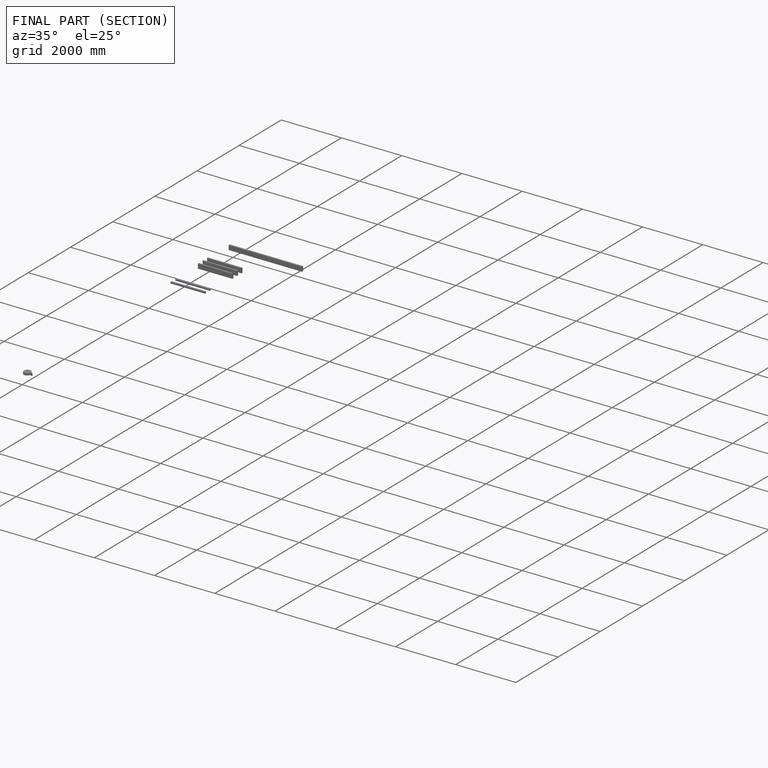
[diagram: finished part — half-section view (interior)]
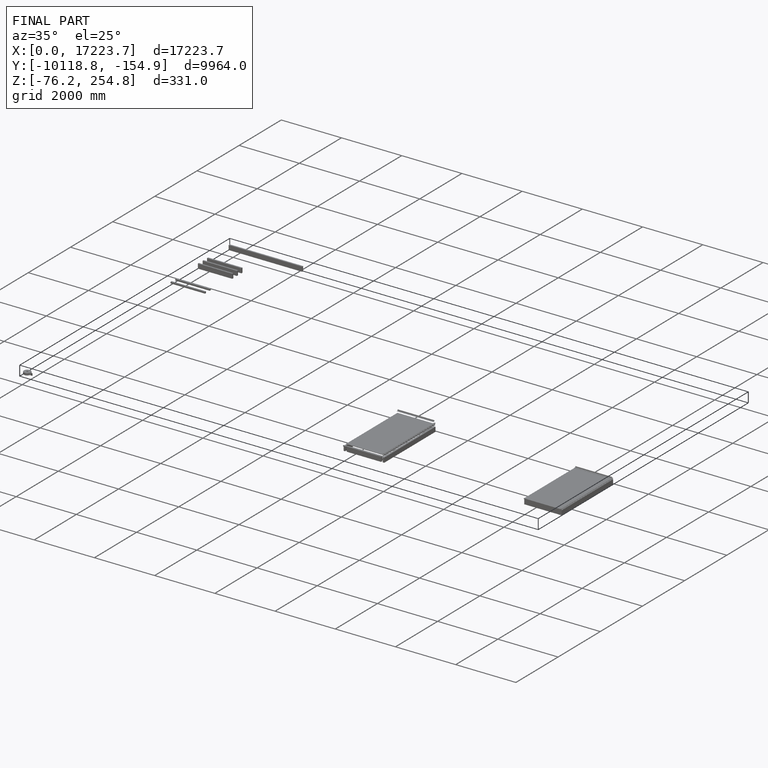
[diagram: finished part — iso view with bounding-box wireframe]
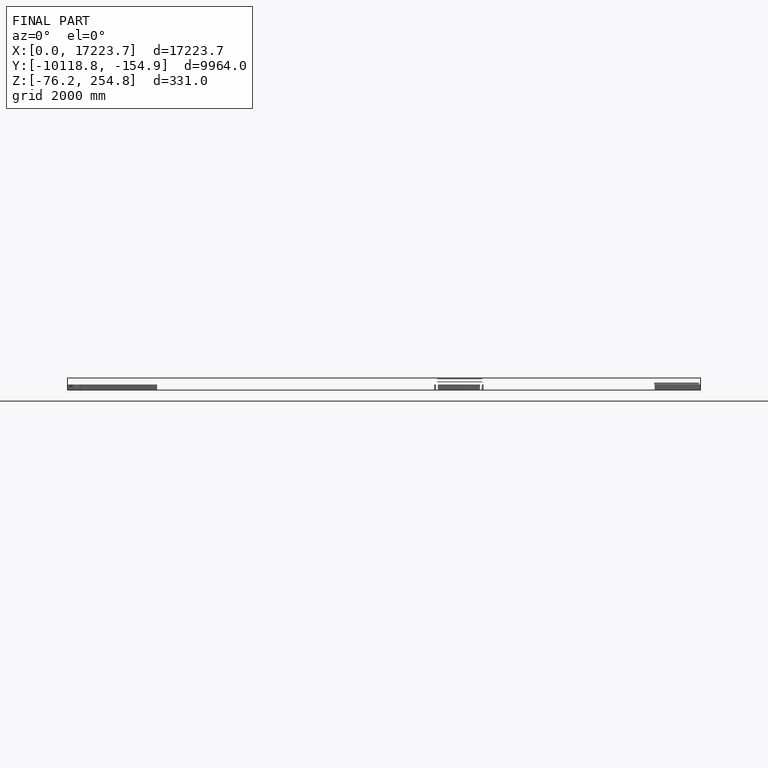
[diagram: finished part — front view with bounding-box wireframe]
